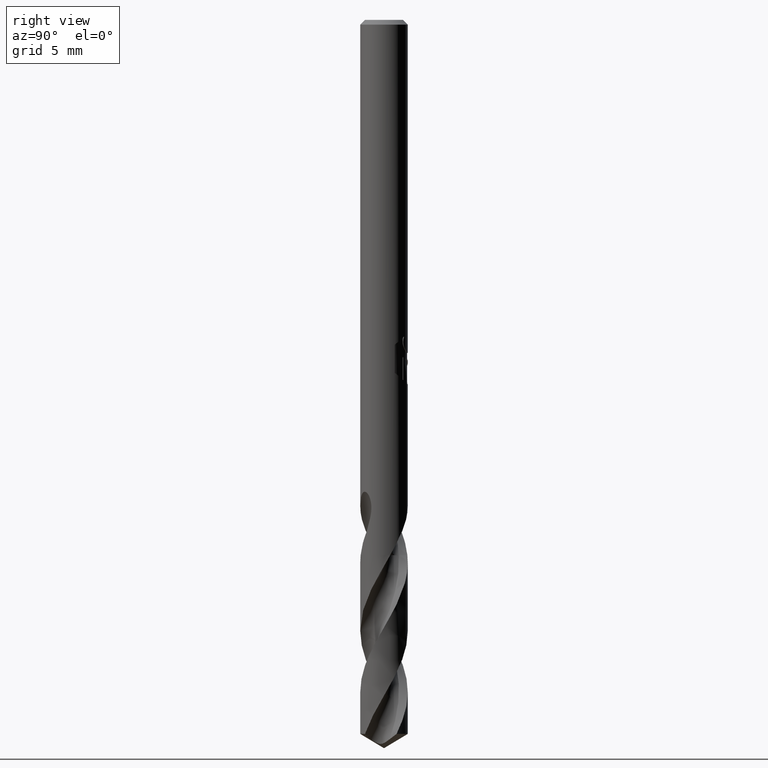
[diagram: clean part render]
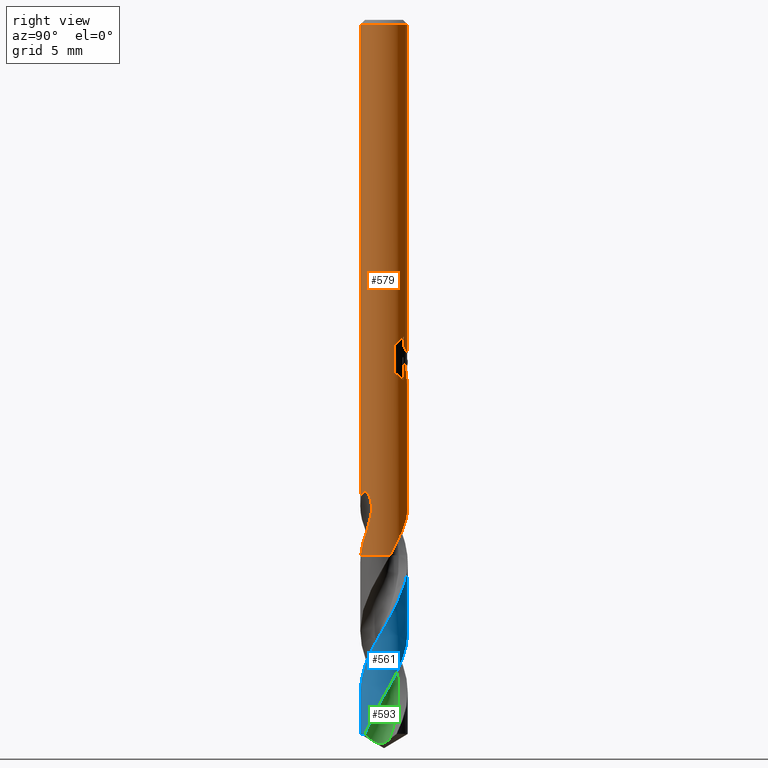
[diagram: same view with three faces highlighted in distinct colors, each labeled with its STEP entity id]
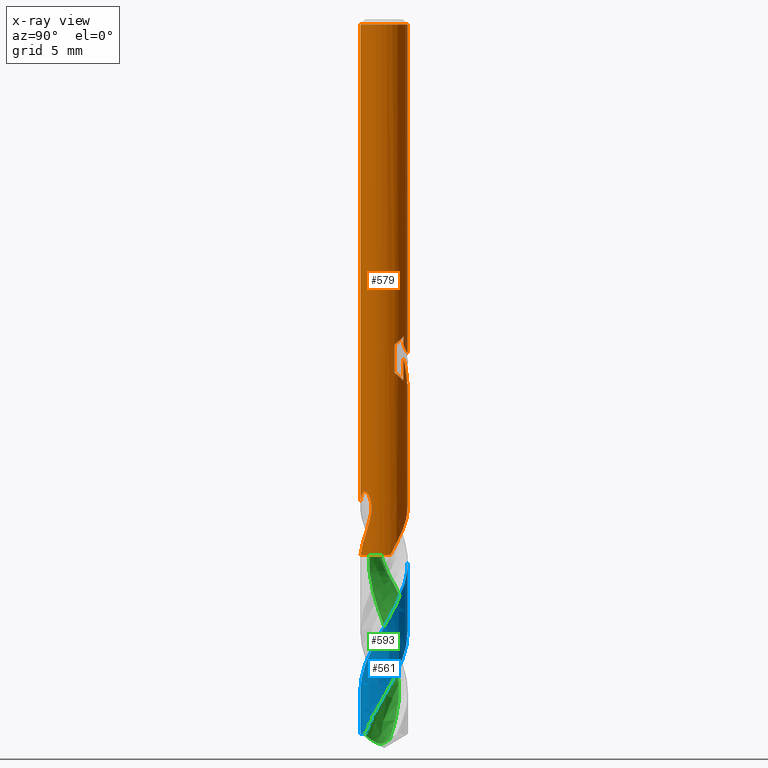
[diagram: x-ray of the same camera — body ghosted, the three highlighted faces saturated]
A machine part, right view with three faces highlighted in distinct colors.
The next image is the same camera in x-ray (body ghosted, the three faces saturated) — at least one of them is partly hidden behind the body in this view.
Their STEP definitions:

[orange] entity #579 — the highlighted cylindrical surface (edge-blend (fillet) strip) has radius 1.5 mm, axis along (-0, -0, 1).
#301=VERTEX_POINT('',#793);
#325=VERTEX_POINT('',#820);
#327=VERTEX_POINT('',#822);
#347=VERTEX_POINT('',#844);
#369=EDGE_CURVE('',#507,#301,#870,.T.);
#399=VERTEX_POINT('',#905);
#405=VERTEX_POINT('',#911);
#409=EDGE_CURVE('',#347,#523,#916,.T.);
#441=EDGE_CURVE('',#347,#405,#951,.T.);
#449=EDGE_CURVE('',#467,#301,#959,.T.);
#451=EDGE_CURVE('',#573,#325,#961,.T.);
#457=VERTEX_POINT('',#967);
#467=VERTEX_POINT('',#977);
#497=EDGE_CURVE('',#637,#551,#1011,.T.);
#499=EDGE_CURVE('',#399,#637,#1013,.T.);
#503=VERTEX_POINT('',#1017);
#507=VERTEX_POINT('',#1021);
#513=EDGE_CURVE('',#681,#609,#1028,.T.);
#523=VERTEX_POINT('',#1039);
#551=VERTEX_POINT('',#1068);
#555=EDGE_CURVE('',#457,#503,#1072,.T.);
#557=EDGE_CURVE('',#551,#507,#1074,.T.);
#563=EDGE_CURVE('',#681,#573,#1081,.T.);
#573=VERTEX_POINT('',#1091);
#579=ADVANCED_FACE('',(#1097),#1098,.T.);
#601=VERTEX_POINT('',#1124);
#609=VERTEX_POINT('',#1132);
#611=EDGE_CURVE('',#327,#405,#1134,.T.);
#613=EDGE_CURVE('',#601,#399,#1136,.T.);
#637=VERTEX_POINT('',#1162);
#651=EDGE_CURVE('',#523,#601,#1178,.T.);
#669=EDGE_CURVE('',#457,#327,#1198,.T.);
#671=EDGE_CURVE('',#325,#503,#1200,.T.);
#681=VERTEX_POINT('',#1210);
#713=EDGE_CURVE('',#467,#609,#1245,.T.);
#793=CARTESIAN_POINT('',(1.07028167063725E-015,1.5,-21.0232688117743));
#820=CARTESIAN_POINT('',(1.04261601392358,-1.07840245155049,-32.273));
#822=CARTESIAN_POINT('',(0.955826450193441,1.15602586351284,-32.273));
#844=CARTESIAN_POINT('',(-1.44945831354929E-017,1.5,-23.0310253601033));
#870=B_SPLINE_CURVE_WITH_KNOTS('',3,(#1932,#1933,#1934,#1935,#1936,#1937,#1938,#1939,#1940,#1941,#1942,#1943,#1944,#1945,#1946,#1947,#1948,#1949,#1950,#1951,#1952,#1953,#1954,#1955,#1956,#1957,#1958),.UNSPECIFIED.,.F.,.F.,(4,2,3,2,2,2,2,2,2,2,2,2,4),(-0.555570148161677,-0.277785074080839,0.0,0.277785074080839,0.555570148161677,0.838954672448038,1.1223391967344,1.3938603912747,1.66538158581499,1.94034344792182,2.21530531002864,2.49026717213547,2.76522903424229),.UNSPECIFIED.);
#905=CARTESIAN_POINT('',(0.873560781758956,1.21938163040645,-22.7587351791531));
#911=CARTESIAN_POINT('',(-4.4379247726798E-013,1.5,-30.6785266610978));
#916=B_SPLINE_CURVE_WITH_KNOTS('',3,(#2548,#2549,#2550,#2551,#2552,#2553,#2554,#2555,#2556,#2557,#2558,#2559,#2560,#2561,#2562,#2563),.UNSPECIFIED.,.F.,.F.,(4,2,2,2,2,2,2,4),(0.656882363151586,0.985323544727379,1.31376472630317,1.61579827194463,1.91783181758608,2.21986536322754,2.52189890886899,2.82957976825427),.UNSPECIFIED.);
#951=LINE('',#2779,#2780);
#959=LINE('',#2790,#2791);
#961=B_SPLINE_CURVE_WITH_KNOTS('',3,(#2794,#2795,#2796,#2797),.UNSPECIFIED.,.F.,.F.,(4,4),(0.0,0.862079850827043),.UNSPECIFIED.);
#967=CARTESIAN_POINT('',(1.44637069140941,0.397507010041165,-33.8));
#977=CARTESIAN_POINT('',(0.0,1.5,-0.300000000000001));
#1011=LINE('',#3362,#3363);
#1013=B_SPLINE_CURVE_WITH_KNOTS('',3,(#3366,#3367,#3368,#3369,#3370,#3371,#3372,#3373),.UNSPECIFIED.,.F.,.F.,(4,2,2,4),(3.44494145273238,3.75262234189648,4.09409052256848,4.43555870324049),.UNSPECIFIED.);
#1017=CARTESIAN_POINT('',(0.274332177781953,-1.47470059884487,-33.8));
#1021=CARTESIAN_POINT('',(0.799431726384364,1.26921586613551,-20.000000276873));
#1028=LINE('',#3399,#3400);
#1039=CARTESIAN_POINT('',(0.29010312703583,1.47167937258223,-22.9998328990228));
#1068=CARTESIAN_POINT('',(1.33721006514658,0.679609624468844,-20.5150484364821));
#1072=CIRCLE('',#3829,1.5);
#1074=B_SPLINE_CURVE_WITH_KNOTS('',3,(#3832,#3833,#3834,#3835,#3836,#3837,#3838,#3839,#3840,#3841),.UNSPECIFIED.,.F.,.F.,(4,2,2,2,4),(5.80143132409454,6.14289950153579,6.48436767897705,6.79204857051347,7.0997294620499),.UNSPECIFIED.);
#1081=B_SPLINE_CURVE_WITH_KNOTS('',3,(#3849,#3850,#3851,#3852,#3853,#3854,#3855,#3856,#3857,#3858,#3859,#3860,#3861,#3862,#3863,#3864,#3865,#3866,#3867,#3868,#3869,#3870,#3871,#3872,#3873,#3874,#3875,#3876),.UNSPECIFIED.,.F.,.F.,(4,2,2,2,2,2,2,2,2,2,2,2,2,4),(0.0,0.734919424519649,1.13620153114086,1.49966231498588,1.92191661966289,2.4291402290594,2.8687597418493,3.06797982700542,3.21358544477763,3.35137095256146,3.52616008675841,3.78188368372509,4.14542484132772,4.55882766017349),.UNSPECIFIED.);
#1091=CARTESIAN_POINT('',(1.22046324492086,-0.872049005387454,-31.451629657912));
#1097=FACE_OUTER_BOUND('',#3944,.T.);
#1098=CYLINDRICAL_SURFACE('',#3945,1.5);
#1124=CARTESIAN_POINT('',(0.873560781758957,1.21938163040644,-21.3198931596091));
#1132=CARTESIAN_POINT('',(1.83690953073357E-016,-1.5,-0.300000000000001));
#1134=B_SPLINE_CURVE_WITH_KNOTS('',3,(#4422,#4423,#4424,#4425,#4426,#4427,#4428,#4429,#4430,#4431,#4432,#4433,#4434,#4435,#4436,#4437,#4438,#4439,#4440,#4441,#4442,#4443,#4444,#4445,#4446,#4447,#4448,#4449),.UNSPECIFIED.,.F.,.F.,(4,2,2,2,2,2,2,2,2,2,2,2,2,4),(0.0,0.734919424519641,1.13620153114084,1.49966231498582,1.92191661966277,2.42914022905919,2.868759741849,3.06797982700512,3.21358544477729,3.35137095256106,3.52616008675795,3.78188368372415,4.14542484132553,4.55882766016978),.UNSPECIFIED.);
#1136=LINE('',#4452,#4453);
#1162=CARTESIAN_POINT('',(1.33721006514658,0.679609624468842,-22.2901657003257));
#1178=ELLIPSE('',#5253,4.57199186005466,1.5);
#1198=B_SPLINE_CURVE_WITH_KNOTS('',3,(#5415,#5416,#5417,#5418,#5419,#5420,#5421,#5422),.UNSPECIFIED.,.F.,.F.,(4,2,2,4),(0.0,0.898366519001214,1.48809988564345,2.57980706411343),.UNSPECIFIED.);
#1200=B_SPLINE_CURVE_WITH_KNOTS('',3,(#5425,#5426,#5427,#5428,#5429,#5430,#5431,#5432),.UNSPECIFIED.,.F.,.F.,(4,2,2,4),(0.0,0.363131137545105,0.689911434857545,1.59394428771477),.UNSPECIFIED.);
#1210=CARTESIAN_POINT('',(4.44902700292606E-013,-1.5,-30.6785266610978));
#1245=CIRCLE('',#5523,1.5);
#1932=CARTESIAN_POINT('',(0.668140181180239,1.34297754943723,-19.816635075886));
#1933=CARTESIAN_POINT('',(0.72954561541178,1.31242794124006,-19.8788438588981));
#1934=CARTESIAN_POINT('',(0.783560352001634,1.27981669553828,-19.9575082882911));
#1935=CARTESIAN_POINT('',(0.856513351014311,1.23218614058296,-20.132478185051));
#1936=CARTESIAN_POINT('',(0.875400981188567,1.21806121444453,-20.2290469878932));
#1937=CARTESIAN_POINT('',(0.875400981188567,1.21806121444453,-20.3216420125868));
#1938=CARTESIAN_POINT('',(0.875400981188567,1.21806121444453,-20.4142370372804));
#1939=CARTESIAN_POINT('',(0.856513351014311,1.23218614058296,-20.5108058401225));
#1940=CARTESIAN_POINT('',(0.783560352001634,1.27981669553828,-20.6857757368825));
#1941=CARTESIAN_POINT('',(0.72954561541178,1.31242794124006,-20.7644401662755));
#1942=CARTESIAN_POINT('',(0.60549696744429,1.37414296109493,-20.8901117053001));
#1943=CARTESIAN_POINT('',(0.52594358793364,1.40783000818906,-20.945820443328));
#1944=CARTESIAN_POINT('',(0.348504567526036,1.46189827571051,-21.0210790623878));
#1945=CARTESIAN_POINT('',(0.250472190188546,1.48195366272155,-21.0405166027747));
#1946=CARTESIAN_POINT('',(0.0665134459332673,1.50125530483568,-21.0405166027747));
#1947=CARTESIAN_POINT('',(-0.0296567030390787,1.50231596180862,-21.0225191030741));
#1948=CARTESIAN_POINT('',(-0.206115087377689,1.48840496513252,-20.9496420023373));
#1949=CARTESIAN_POINT('',(-0.286451100530325,1.47383453037813,-20.8948020659474));
#1950=CARTESIAN_POINT('',(-0.413930554322423,1.44326440842702,-20.7683224497832));
#1951=CARTESIAN_POINT('',(-0.469556401354002,1.42515667708804,-20.6877724765815));
#1952=CARTESIAN_POINT('',(-0.543783863835251,1.3985185002205,-20.5103125850334));
#1953=CARTESIAN_POINT('',(-0.562348199187247,1.39059861314143,-20.4132959666224));
#1954=CARTESIAN_POINT('',(-0.562348199187247,1.39059861314143,-20.2299880585512));
#1955=CARTESIAN_POINT('',(-0.543783863835251,1.3985185002205,-20.1329714401401));
#1956=CARTESIAN_POINT('',(-0.469556401354002,1.42515667708804,-19.9555115485921));
#1957=CARTESIAN_POINT('',(-0.413930554322424,1.44326440842702,-19.8749615753903));
#1958=CARTESIAN_POINT('',(-0.349789520911262,1.45864570443294,-19.8113236082914));
#2548=CARTESIAN_POINT('',(-1.37998432118956,0.587914341780333,-22.3112692902851));
#2549=CARTESIAN_POINT('',(-1.3420187927796,0.677031105684867,-22.367742000234));
#2550=CARTESIAN_POINT('',(-1.29552710671502,0.762160552391982,-22.4289638354046));
#2551=CARTESIAN_POINT('',(-1.18739688452769,0.921611538394464,-22.5496702342709));
#2552=CARTESIAN_POINT('',(-1.12571460502269,0.995864518486346,-22.6092061584419));
#2553=CARTESIAN_POINT('',(-0.99683873257529,1.12423580420845,-22.7144597063823));
#2554=CARTESIAN_POINT('',(-0.926200605330785,1.18371601339253,-22.7644681671771));
#2555=CARTESIAN_POINT('',(-0.769406154596547,1.29114109676327,-22.8557531235434));
#2556=CARTESIAN_POINT('',(-0.683234987830561,1.33908204140926,-22.8970087462345));
#2557=CARTESIAN_POINT('',(-0.499897730684779,1.4177634331103,-22.9645767271564));
#2558=CARTESIAN_POINT('',(-0.402498520356948,1.44857835781097,-22.9909473368275));
#2559=CARTESIAN_POINT('',(-0.20288430631457,1.48970543263052,-23.0250573425345));
#2560=CARTESIAN_POINT('',(-0.100662581590227,1.5,-23.0327786015796));
#2561=CARTESIAN_POINT('',(0.102544734048809,1.5,-23.0292393371535));
#2562=CARTESIAN_POINT('',(0.206197625002642,1.48932559621363,-23.0175826358192));
#2563=CARTESIAN_POINT('',(0.307013263411802,1.46824482157753,-22.9963679704669));
#2779=CARTESIAN_POINT('',(-1.83690953073357E-016,1.5,-29.4));
#2780=VECTOR('',#6526,1.0);
#2790=CARTESIAN_POINT('',(-1.83690953073357E-016,1.5,-29.4));
#2791=VECTOR('',#6530,1.0);
#2794=CARTESIAN_POINT('',(1.22046324497348,-0.872049005313815,-31.4516296579409));
#2795=CARTESIAN_POINT('',(1.17210448132609,-0.939728795376484,-31.7266871374211));
#2796=CARTESIAN_POINT('',(1.11381924545133,-1.0095620763017,-32.0033814725976));
#2797=CARTESIAN_POINT('',(1.04261601392358,-1.07840245155049,-32.273));
#3362=CARTESIAN_POINT('',(1.33721006514658,0.679609624468842,-21.4026070684039));
#3363=VECTOR('',#6576,1.0);
#3366=CARTESIAN_POINT('',(0.85377235345141,1.23331778892629,-22.7716896685764));
#3367=CARTESIAN_POINT('',(0.931827525962819,1.17928358209268,-22.7213967195539));
#3368=CARTESIAN_POINT('',(1.00188140708589,1.11969494995205,-22.6666907649153));
#3369=CARTESIAN_POINT('',(1.13065972950939,0.990366314251407,-22.5504502365922));
#3370=CARTESIAN_POINT('',(1.19231359439054,0.915242251333689,-22.4842345901414));
#3371=CARTESIAN_POINT('',(1.29959340280439,0.755206645619147,-22.3494445634359));
#3372=CARTESIAN_POINT('',(1.34525639772529,0.670378049633869,-22.2808012142433));
#3373=CARTESIAN_POINT('',(1.38233607670672,0.582363263809685,-22.2165347234377));
#3399=CARTESIAN_POINT('',(1.83690953073357E-016,-1.5,-29.4));
#3400=VECTOR('',#6605,1.0);
#3829=AXIS2_PLACEMENT_3D('',#6640,#6641,#6642);
#3832=CARTESIAN_POINT('',(1.38233607683132,0.582363263513924,-20.588679412779));
#3833=CARTESIAN_POINT('',(1.34525639795916,0.670378049131382,-20.5244129230316));
#3834=CARTESIAN_POINT('',(1.29959340329505,0.755206644680287,-20.455769574626));
#3835=CARTESIAN_POINT('',(1.19231359589767,0.915242249292316,-20.3209795489815));
#3836=CARTESIAN_POINT('',(1.13065973177348,0.990366311544942,-20.2547639028079));
#3837=CARTESIAN_POINT('',(1.0018814103964,1.11969494701727,-20.1385233736042));
#3838=CARTESIAN_POINT('',(0.931827529215927,1.17928357954499,-20.0838174178235));
#3839=CARTESIAN_POINT('',(0.77571718400412,1.28735199393445,-19.9832315170083));
#3840=CARTESIAN_POINT('',(0.689646271470066,1.33582605359774,-19.9373678495874));
#3841=CARTESIAN_POINT('',(0.597730583977961,1.37576093452946,-19.8990923208842));
#3849=CARTESIAN_POINT('',(-0.955826450193442,-1.15602586351284,-32.273));
#3850=CARTESIAN_POINT('',(-0.856880714080365,-1.23783627510982,-32.0643648209938));
#3851=CARTESIAN_POINT('',(-0.743115395704618,-1.31056007068985,-31.8698497401907));
#3852=CARTESIAN_POINT('',(-0.544742531155021,-1.39969826187234,-31.5448988086608));
#3853=CARTESIAN_POINT('',(-0.473358796381456,-1.42533989743551,-31.4305703465191));
#3854=CARTESIAN_POINT('',(-0.33516888827982,-1.46366222849664,-31.2092599492561));
#3855=CARTESIAN_POINT('',(-0.268979746686005,-1.47720142054802,-31.103309612104));
#3856=CARTESIAN_POINT('',(-0.125708112629072,-1.49674184821654,-30.8749583743827));
#3857=CARTESIAN_POINT('',(-0.0474288869669631,-1.50132942011774,-30.75077006207));
#3858=CARTESIAN_POINT('',(0.12640913429535,-1.49767287657042,-30.4850903627386));
#3859=CARTESIAN_POINT('',(0.229477470973733,-1.48636306121171,-30.3339157281609));
#3860=CARTESIAN_POINT('',(0.428231458063886,-1.44068852394289,-30.0846391386798));
#3861=CARTESIAN_POINT('',(0.538194148392213,-1.40589025977158,-29.9630018423218));
#3862=CARTESIAN_POINT('',(0.704621514688883,-1.32545512693772,-29.849100888941));
#3863=CARTESIAN_POINT('',(0.759710000846592,-1.29508905514035,-29.8209514377899));
#3864=CARTESIAN_POINT('',(0.856237705091836,-1.23256455462362,-29.799327587984));
#3865=CARTESIAN_POINT('',(0.895829141852265,-1.20409042289795,-29.7989238040765));
#3866=CARTESIAN_POINT('',(0.969570334630121,-1.14543964779932,-29.8178491174815));
#3867=CARTESIAN_POINT('',(1.00182105452755,-1.11711249050342,-29.8355932949545));
#3868=CARTESIAN_POINT('',(1.06745091261156,-1.0550357310721,-29.8911127993405));
#3869=CARTESIAN_POINT('',(1.09781425610002,-1.02286599079868,-29.9321039737442));
#3870=CARTESIAN_POINT('',(1.16000820300644,-0.952620997760338,-30.0443505497179));
#3871=CARTESIAN_POINT('',(1.1897356693544,-0.914367567158807,-30.1276043439943));
#3872=CARTESIAN_POINT('',(1.24563707432167,-0.837555141191258,-30.3605391888482));
#3873=CARTESIAN_POINT('',(1.2658467294698,-0.804836722556952,-30.5264322515252));
#3874=CARTESIAN_POINT('',(1.27876869102085,-0.784167622639195,-30.923052096235));
#3875=CARTESIAN_POINT('',(1.26961263652255,-0.803262703712318,-31.1720834470048));
#3876=CARTESIAN_POINT('',(1.22046324492086,-0.872049005387455,-31.451629657912));
#3944=EDGE_LOOP('',(#6654,#6655,#6656,#6657,#6658,#6659,#6660,#6661,#6662,#6663,#6664,#6665,#6666,#6667,#6668,#6669,#6670));
#3945=AXIS2_PLACEMENT_3D('',#6671,#6672,#6673);
#4422=CARTESIAN_POINT('',(0.95582645019344,1.15602586351284,-32.273));
#4423=CARTESIAN_POINT('',(0.856880714080364,1.23783627510982,-32.0643648209938));
#4424=CARTESIAN_POINT('',(0.743115395704616,1.31056007068985,-31.8698497401907));
#4425=CARTESIAN_POINT('',(0.544742531155022,1.39969826187234,-31.5448988086608));
#4426=CARTESIAN_POINT('',(0.473358796381459,1.42533989743551,-31.4305703465191));
#4427=CARTESIAN_POINT('',(0.335168888279825,1.46366222849664,-31.2092599492562));
#4428=CARTESIAN_POINT('',(0.268979746686013,1.47720142054802,-31.103309612104));
#4429=CARTESIAN_POINT('',(0.125708112629069,1.49674184821654,-30.8749583743827));
#4430=CARTESIAN_POINT('',(0.0474288869669627,1.50132942011774,-30.75077006207));
#4431=CARTESIAN_POINT('',(-0.126409134295348,1.49767287657042,-30.4850903627386));
#4432=CARTESIAN_POINT('',(-0.22947747097373,1.48636306121171,-30.3339157281609));
#4433=CARTESIAN_POINT('',(-0.428231458063881,1.44068852394289,-30.0846391386798));
#4434=CARTESIAN_POINT('',(-0.538194148392212,1.40589025977158,-29.9630018423218));
#4435=CARTESIAN_POINT('',(-0.704621514688896,1.32545512693771,-29.849100888941));
#4436=CARTESIAN_POINT('',(-0.759710000846596,1.29508905514035,-29.8209514377899));
#4437=CARTESIAN_POINT('',(-0.85623770509182,1.23256455462363,-29.799327587984));
#4438=CARTESIAN_POINT('',(-0.895829141852259,1.20409042289796,-29.7989238040765));
#4439=CARTESIAN_POINT('',(-0.969570334630121,1.14543964779932,-29.8178491174815));
#4440=CARTESIAN_POINT('',(-1.00182105452755,1.11711249050342,-29.8355932949545));
#4441=CARTESIAN_POINT('',(-1.06745091261156,1.0550357310721,-29.8911127993405));
#4442=CARTESIAN_POINT('',(-1.09781425610002,1.02286599079868,-29.9321039737442));
#4443=CARTESIAN_POINT('',(-1.16000820300638,0.952620997760409,-30.0443505497178));
#4444=CARTESIAN_POINT('',(-1.18973566935435,0.914367567158863,-30.1276043439941));
#4445=CARTESIAN_POINT('',(-1.24563707432168,0.837555141191247,-30.3605391888482));
#4446=CARTESIAN_POINT('',(-1.26584672946981,0.804836722556951,-30.5264322515253));
#4447=CARTESIAN_POINT('',(-1.27876869102085,0.784167622639202,-30.9230520962349));
#4448=CARTESIAN_POINT('',(-1.26961263652257,0.803262703712296,-31.1720834470047));
#4449=CARTESIAN_POINT('',(-1.22046324492086,0.872049005387457,-31.451629657912));
#4452=CARTESIAN_POINT('',(0.873560781758957,1.21938163040644,-22.0393141693811));
#4453=VECTOR('',#6710,1.0);
#5253=AXIS2_PLACEMENT_3D('',#6738,#6739,#6740);
#5415=CARTESIAN_POINT('',(1.44637069140942,0.397507010041158,-33.8));
#5416=CARTESIAN_POINT('',(1.40674820633815,0.541677552145448,-33.5405418844212));
#5417=CARTESIAN_POINT('',(1.34660783628587,0.676830825579305,-33.2953837206006));
#5418=CARTESIAN_POINT('',(1.21710188260143,0.881990667582461,-32.8619443828852));
#5419=CARTESIAN_POINT('',(1.17348785641552,0.93523493850717,-32.7289072521104));
#5420=CARTESIAN_POINT('',(1.09684883918653,1.02609894595033,-32.516738341527));
#5421=CARTESIAN_POINT('',(1.03497201032485,1.09058665304475,-32.3921053474163));
#5422=CARTESIAN_POINT('',(0.955826450193442,1.15602586351284,-32.273));
#5425=CARTESIAN_POINT('',(1.04261601392358,-1.07840245155049,-32.273));
#5426=CARTESIAN_POINT('',(1.00139489406672,-1.11825566183653,-32.3796026324584));
#5427=CARTESIAN_POINT('',(0.956589991650253,-1.1571678712405,-32.4869305648621));
#5428=CARTESIAN_POINT('',(0.85958348272533,-1.23062504590984,-32.6954116418018));
#5429=CARTESIAN_POINT('',(0.810864182166012,-1.26348538763226,-32.7938125485142));
#5430=CARTESIAN_POINT('',(0.607898890496309,-1.38212774359936,-33.1989850733925));
#5431=CARTESIAN_POINT('',(0.444564646352219,-1.44303298857288,-33.4999363270875));
#5432=CARTESIAN_POINT('',(0.274332177781959,-1.47470059884486,-33.8));
#5523=AXIS2_PLACEMENT_3D('',#6797,#6798,#6799);
#6526=DIRECTION('',(0.0,0.0,-1.0));
#6530=DIRECTION('',(0.0,0.0,-1.0));
#6576=DIRECTION('',(-0.0,-0.0,1.0));
#6605=DIRECTION('',(-0.0,-0.0,1.0));
#6640=CARTESIAN_POINT('',(0.0,0.0,-33.8));
#6641=DIRECTION('',(0.0,0.0,-1.0));
#6642=DIRECTION('',(0.0,1.0,0.0));
#6654=ORIENTED_EDGE('',*,*,#449,.F.);
#6655=ORIENTED_EDGE('',*,*,#713,.T.);
#6656=ORIENTED_EDGE('',*,*,#513,.F.);
#6657=ORIENTED_EDGE('',*,*,#563,.T.);
#6658=ORIENTED_EDGE('',*,*,#451,.T.);
#6659=ORIENTED_EDGE('',*,*,#671,.T.);
#6660=ORIENTED_EDGE('',*,*,#555,.F.);
#6661=ORIENTED_EDGE('',*,*,#669,.T.);
#6662=ORIENTED_EDGE('',*,*,#611,.T.);
#6663=ORIENTED_EDGE('',*,*,#441,.F.);
#6664=ORIENTED_EDGE('',*,*,#409,.T.);
#6665=ORIENTED_EDGE('',*,*,#651,.T.);
#6666=ORIENTED_EDGE('',*,*,#613,.T.);
#6667=ORIENTED_EDGE('',*,*,#499,.T.);
#6668=ORIENTED_EDGE('',*,*,#497,.T.);
#6669=ORIENTED_EDGE('',*,*,#557,.T.);
#6670=ORIENTED_EDGE('',*,*,#369,.T.);
#6671=CARTESIAN_POINT('',(0.0,0.0,-29.4));
#6672=DIRECTION('',(-0.0,-0.0,1.0));
#6673=DIRECTION('',(0.0,1.0,0.0));
#6710=DIRECTION('',(0.0,0.0,-1.0));
#6738=CARTESIAN_POINT('',(0.0,0.0,-23.8351219173269));
#6739=DIRECTION('',(0.944648353914092,0.0,-0.328084573619969));
#6740=DIRECTION('',(0.328084573619969,-0.0,0.944648353914092));
#6797=CARTESIAN_POINT('',(0.0,0.0,-0.300000000000001));
#6798=DIRECTION('',(0.0,0.0,-1.0));
#6799=DIRECTION('',(0.0,1.0,0.0));

[blue] entity #561 — the highlighted conical surface has half-angle 0.001 deg.
#303=EDGE_CURVE('',#315,#627,#795,.T.);
#315=VERTEX_POINT('',#810);
#419=EDGE_CURVE('',#445,#627,#928,.T.);
#439=VERTEX_POINT('',#949);
#443=EDGE_CURVE('',#583,#315,#953,.T.);
#445=VERTEX_POINT('',#955);
#549=EDGE_CURVE('',#445,#439,#1066,.T.);
#561=ADVANCED_FACE('',(#1078),#1079,.T.);
#583=VERTEX_POINT('',#1102);
#627=VERTEX_POINT('',#1151);
#657=EDGE_CURVE('',#583,#439,#1184,.T.);
#795=LINE('',#1478,#1479);
#810=CARTESIAN_POINT('',(1.83690953073306E-016,-1.5,-45.0987090714587));
#928=B_SPLINE_CURVE_WITH_KNOTS('',3,(#2580,#2581,#2582,#2583,#2584,#2585,#2586,#2587,#2588,#2589,#2590,#2591,#2592,#2593,#2594,#2595,#2596,#2597,#2598,#2599,#2600,#2601,#2602,#2603,#2604,#2605,#2606,#2607,#2608,#2609,#2610,#2611,#2612,#2613,#2614,#2615,#2616,#2617,#2618,#2619,#2620,#2621,#2622,#2623,#2624,#2625,#2626,#2627,#2628,#2629,#2630,#2631,#2632,#2633,#2634,#2635,#2636,#2637),.UNSPECIFIED.,.F.,.F.,(4,2,2,2,2,2,2,2,2,2,2,2,2,2,2,2,2,2,2,2,2,2,2,2,2,2,2,2,4),(0.0,0.412712007311904,1.02315288898945,1.31457605175856,1.89478417109436,2.18734425393405,2.22542742319312,2.72880782782205,3.02205725740408,3.31184652918757,3.8914006353009,4.03734011873589,4.32642330185619,4.90646327712457,5.48878435257972,6.07265105572692,6.21682465875408,6.82651098949632,7.41092778246839,7.99347326458904,8.28266896801387,8.86236652455153,9.38182822016152,9.83681011690985,10.0364540795945,10.2224758620449,10.9222424624711,11.4489190571831,13.0437849569643),.UNSPECIFIED.);
#949=CARTESIAN_POINT('',(-3.13860003223368E-016,1.49994239917648,-38.5905595988041));
#953=CIRCLE('',#2783,1.5);
#955=CARTESIAN_POINT('',(-2.37395634863545E-014,1.49990424063446,-34.2791369502725));
#1066=LINE('',#3801,#3802);
#1078=FACE_OUTER_BOUND('',#3845,.T.);
#1079=CONICAL_SURFACE('',#3846,1.49995,8.85056862380721E-006);
#1102=CARTESIAN_POINT('',(0.898964889177854,-1.20077563600593,-45.0987090714587));
#1151=CARTESIAN_POINT('',(-3.0167538709066E-015,-1.4999766485866,-42.4603008076202));
#1184=B_SPLINE_CURVE_WITH_KNOTS('',3,(#5277,#5278,#5279,#5280,#5281,#5282,#5283,#5284,#5285,#5286,#5287,#5288,#5289,#5290,#5291,#5292,#5293,#5294,#5295,#5296,#5297,#5298,#5299,#5300,#5301,#5302,#5303,#5304,#5305,#5306,#5307,#5308,#5309,#5310,#5311,#5312,#5313,#5314,#5315,#5316,#5317,#5318,#5319,#5320,#5321,#5322,#5323,#5324,#5325,#5326,#5327,#5328,#5329,#5330,#5331,#5332,#5333,#5334,#5335,#5336,#5337,#5338,#5339,#5340,#5341,#5342),.UNSPECIFIED.,.F.,.F.,(4,2,2,2,2,2,2,2,2,2,2,2,2,2,2,2,2,2,2,2,2,2,2,2,2,2,2,2,2,2,2,2,4),(0.0,0.587548930929874,1.17219633491958,1.75708313699691,2.0486830362662,2.54372425028701,2.79175573110136,3.03846331551728,3.53381270181263,3.78198925889546,4.02889593419828,4.52456850841751,4.77291035535085,5.01998875886444,5.51600228806989,5.76453197975784,6.0118222586032,6.599840608108,6.89334279986365,6.92982959179808,7.51519973160026,8.09815558847677,8.68291184073528,9.22598929252954,9.70420817375632,10.1206827768515,10.8534329250034,10.8875830650539,11.4266172634033,11.831193684894,11.8690351664345,12.4565412466727,13.0421091506934),.UNSPECIFIED.);
#1478=CARTESIAN_POINT('',(1.83737932684824E-016,-1.49995,-39.4493545357293));
#1479=VECTOR('',#6338,1.0);
#2580=CARTESIAN_POINT('',(-0.271758074504302,1.47507548220704,-33.8044921620275));
#2581=CARTESIAN_POINT('',(-0.204142080272698,1.48753367464163,-33.9236498716524));
#2582=CARTESIAN_POINT('',(-0.135839845590517,1.49531161099616,-34.0427677182803));
#2583=CARTESIAN_POINT('',(0.0339979617841253,1.50294608390038,-34.3383880958627));
#2584=CARTESIAN_POINT('',(0.135616603516598,1.49721411528421,-34.5144406957363));
#2585=CARTESIAN_POINT('',(0.283854733757048,1.4736027562454,-34.7748926299985));
#2586=CARTESIAN_POINT('',(0.331350537186167,1.46365537351991,-34.8589092445469));
#2587=CARTESIAN_POINT('',(0.471718584753518,1.42707387050272,-35.1106495337354));
#2588=CARTESIAN_POINT('',(0.562589149320856,1.39375594018239,-35.2780034450408));
#2589=CARTESIAN_POINT('',(0.693502764973594,1.33085319260625,-35.5300941023429));
#2590=CARTESIAN_POINT('',(0.736332783559687,1.30764384501702,-35.6145251370681));
#2591=CARTESIAN_POINT('',(0.7833758830217,1.27910637159065,-35.7100285670296));
#2592=CARTESIAN_POINT('',(0.78877263571982,1.27578559829462,-35.7210278996095));
#2593=CARTESIAN_POINT('',(0.86520040882298,1.22808721349864,-35.8774400509443));
#2594=CARTESIAN_POINT('',(0.932409105574771,1.17787342521949,-36.0227859134886));
#2595=CARTESIAN_POINT('',(1.03157920489245,1.08994940426996,-36.2529387389864));
#2596=CARTESIAN_POINT('',(1.06649464566189,1.05581228736232,-36.3375914782957));
#2597=CARTESIAN_POINT('',(1.13249906139664,0.984654689677003,-36.5060020452942));
#2598=CARTESIAN_POINT('',(1.16356966643037,0.947736509756752,-36.5896049823844));
#2599=CARTESIAN_POINT('',(1.25126803358554,0.832710881183599,-36.8407785364096));
#2600=CARTESIAN_POINT('',(1.30221661464656,0.750548783928081,-37.0079896289141));
#2601=CARTESIAN_POINT('',(1.35568206277954,0.64226708721561,-37.2175870558842));
#2602=CARTESIAN_POINT('',(1.36590730572347,0.620225302488151,-37.2597396323047));
#2603=CARTESIAN_POINT('',(1.39478012139089,0.553804933824877,-37.3854115920903));
#2604=CARTESIAN_POINT('',(1.41182436631671,0.50878559004795,-37.4688384453802));
#2605=CARTESIAN_POINT('',(1.45646685043896,0.371243949261992,-37.7199886164181));
#2606=CARTESIAN_POINT('',(1.47734146560955,0.276758865094872,-37.8873372925401));
#2607=CARTESIAN_POINT('',(1.50068249036454,0.0846625161415502,-38.2231782543113));
#2608=CARTESIAN_POINT('',(1.50301447897275,-0.0124497145726609,-38.3909610922225));
#2609=CARTESIAN_POINT('',(1.48890900960549,-0.205952224079409,-38.7279902478139));
#2610=CARTESIAN_POINT('',(1.47244982327797,-0.301957274721587,-38.896289201107));
#2611=CARTESIAN_POINT('',(1.44046904526926,-0.418886761487107,-39.1066311412276));
#2612=CARTESIAN_POINT('',(1.43358235670516,-0.441881853714903,-39.1482653732989));
#2613=CARTESIAN_POINT('',(1.39470750740715,-0.561193623390832,-39.3661081556097));
#2614=CARTESIAN_POINT('',(1.35354904127688,-0.654263836592466,-39.542085840682));
#2615=CARTESIAN_POINT('',(1.25514376108051,-0.827008503546259,-39.8871647764445));
#2616=CARTESIAN_POINT('',(1.1988845177197,-0.906641430112762,-40.0554942895409));
#2617=CARTESIAN_POINT('',(1.07198702596664,-1.05361998737612,-40.3928029112377));
#2618=CARTESIAN_POINT('',(1.0016497222352,-1.12070926169899,-40.5608028015552));
#2619=CARTESIAN_POINT('',(0.88738870701393,-1.21026733459634,-40.8127098543607));
#2620=CARTESIAN_POINT('',(0.848088104086038,-1.23812429132631,-40.8961883815391));
#2621=CARTESIAN_POINT('',(0.726219529498508,-1.31598225134361,-41.1473438300812));
#2622=CARTESIAN_POINT('',(0.64006468898588,-1.3599764970799,-41.3146505618351));
#2623=CARTESIAN_POINT('',(0.46978469682043,-1.42712772483304,-41.6323267951365));
#2624=CARTESIAN_POINT('',(0.386743027750424,-1.45183178625518,-41.7820690533152));
#2625=CARTESIAN_POINT('',(0.227894967349676,-1.48449210627862,-42.063770629401));
#2626=CARTESIAN_POINT('',(0.15265356369898,-1.49410869899641,-42.195145028569));
#2627=CARTESIAN_POINT('',(0.0437805957861032,-1.49970549479219,-42.3843527698668));
#2628=CARTESIAN_POINT('',(0.010526338644834,-1.50030812828336,-42.4420314897751));
#2629=CARTESIAN_POINT('',(-0.0537051270254748,-1.49933593465923,-42.5534934867429));
#2630=CARTESIAN_POINT('',(-0.0846549634573458,-1.4979073888902,-42.6072268093549));
#2631=CARTESIAN_POINT('',(-0.231689859845889,-1.48655080163457,-42.8632952792798));
#2632=CARTESIAN_POINT('',(-0.346449641884538,-1.46407245803975,-43.0651130408675));
#2633=CARTESIAN_POINT('',(-0.541029710758115,-1.40176331948181,-43.4196226097264));
#2634=CARTESIAN_POINT('',(-0.622041853413609,-1.3677380217684,-43.571563349163));
#2635=CARTESIAN_POINT('',(-0.93438972723776,-1.20305926006645,-44.1850127340088));
#2636=CARTESIAN_POINT('',(-1.13228840206603,-1.01906777730749,-44.6377787902618));
#2637=CARTESIAN_POINT('',(-1.27285982394133,-0.793616953319442,-45.0987090714587));
#2783=AXIS2_PLACEMENT_3D('',#6527,#6528,#6529);
#3801=CARTESIAN_POINT('',(-1.83631727398351E-016,1.49995,-39.4493545357293));
#3802=VECTOR('',#6639,1.0);
#3845=EDGE_LOOP('',(#6644,#6645,#6646,#6647,#6648));
#3846=AXIS2_PLACEMENT_3D('',#6649,#6650,#6651);
#5277=CARTESIAN_POINT('',(0.898964889177859,-1.20077563600593,-45.0987090714587));
#5278=CARTESIAN_POINT('',(0.976800514928227,-1.14250184231345,-44.9287006503498));
#5279=CARTESIAN_POINT('',(1.04899950509638,-1.07664198465589,-44.7600092892785));
#5280=CARTESIAN_POINT('',(1.17960625672653,-0.931656462114362,-44.4216461936674));
#5281=CARTESIAN_POINT('',(1.23753883149296,-0.853196197598527,-44.2525407346003));
#5282=CARTESIAN_POINT('',(1.33741667368532,-0.686120646968443,-43.9148704595427));
#5283=CARTESIAN_POINT('',(1.37908841825867,-0.59794194226052,-43.7471042264553));
#5284=CARTESIAN_POINT('',(1.42828215809011,-0.460779429246651,-43.4939923570147));
#5285=CARTESIAN_POINT('',(1.44240265631987,-0.414452255637177,-43.4095459773122));
#5286=CARTESIAN_POINT('',(1.47438282297503,-0.287908378374447,-43.1825042794213));
#5287=CARTESIAN_POINT('',(1.48795927699863,-0.206654465029531,-43.0403663331886));
#5288=CARTESIAN_POINT('',(1.49822499090824,-0.0834531398506879,-42.8261355034873));
#5289=CARTESIAN_POINT('',(1.49994928093325,-0.0422515801005801,-42.7546958457341));
#5290=CARTESIAN_POINT('',(1.50000703161603,0.0398761499507943,-42.6119544503452));
#5291=CARTESIAN_POINT('',(1.49836058257865,0.08075708911031,-42.5406123359803));
#5292=CARTESIAN_POINT('',(1.48838702719305,0.203419055410266,-42.3265747470231));
#5293=CARTESIAN_POINT('',(1.47500668724805,0.284713847553681,-42.1844254457672));
#5294=CARTESIAN_POINT('',(1.44495283322564,0.404637051608377,-41.9701911215583));
#5295=CARTESIAN_POINT('',(1.43328487119617,0.444190133815133,-41.8987510739125));
#5296=CARTESIAN_POINT('',(1.40682515144114,0.521950471328153,-41.755996111224));
#5297=CARTESIAN_POINT('',(1.39206650584005,0.560120264892557,-41.6846391224732));
#5298=CARTESIAN_POINT('',(1.34302809933944,0.672999100770368,-41.4705891496527));
#5299=CARTESIAN_POINT('',(1.30412116595996,0.745622001083481,-41.3284420351799));
#5300=CARTESIAN_POINT('',(1.23696182317176,0.849424895511733,-41.1142081340161));
#5301=CARTESIAN_POINT('',(1.21314940475355,0.883094725576559,-41.0427678718722));
#5302=CARTESIAN_POINT('',(1.16300153246595,0.948153052088664,-40.9000098709045));
#5303=CARTESIAN_POINT('',(1.13671050980034,0.979515149479826,-40.8286491661272));
#5304=CARTESIAN_POINT('',(1.0538692709365,1.07050794710725,-40.6146068255529));
#5305=CARTESIAN_POINT('',(0.993608762210079,1.12667740863305,-40.4724654755902));
#5306=CARTESIAN_POINT('',(0.896542569714968,1.20323973325377,-40.2582390183787));
#5307=CARTESIAN_POINT('',(0.863136115273726,1.2274205315033,-40.1867983724618));
#5308=CARTESIAN_POINT('',(0.794666998877106,1.27281138272229,-40.0440332347045));
#5309=CARTESIAN_POINT('',(0.759655874384142,1.29400959851707,-39.9726648848729));
#5310=CARTESIAN_POINT('',(0.638608334911408,1.36069905416159,-39.7322557756339));
#5311=CARTESIAN_POINT('',(0.548947945722856,1.39929140784652,-39.5642151995014));
#5312=CARTESIAN_POINT('',(0.409694122302799,1.44373324020712,-39.3107688775952));
#5313=CARTESIAN_POINT('',(0.362729284271505,1.45623535723792,-39.2264853322754));
#5314=CARTESIAN_POINT('',(0.309445509045991,1.46769252745782,-39.1314836332568));
#5315=CARTESIAN_POINT('',(0.303531469288311,1.46892705409157,-39.1209547523487));
#5316=CARTESIAN_POINT('',(0.202251654624819,1.48942685372553,-38.9409490590548));
#5317=CARTESIAN_POINT('',(0.105104356055025,1.49943866357566,-38.7726991438697));
#5318=CARTESIAN_POINT('',(-0.0897462596603232,1.50040708374384,-38.4350355028394));
#5319=CARTESIAN_POINT('',(-0.186683141117185,1.49143644007914,-38.2660228215366));
#5320=CARTESIAN_POINT('',(-0.377575208972161,1.45489501062999,-37.928489474273));
#5321=CARTESIAN_POINT('',(-0.471156160600946,1.42733711761113,-37.7606448243369));
#5322=CARTESIAN_POINT('',(-0.645242222281145,1.35706697283953,-37.4347189432173));
#5323=CARTESIAN_POINT('',(-0.725864693951521,1.31571474028717,-37.2772064921028));
#5324=CARTESIAN_POINT('',(-0.86967883547446,1.22466148084884,-36.9820563642675));
#5325=CARTESIAN_POINT('',(-0.933469742668102,1.17675404090218,-36.8444707746863));
#5326=CARTESIAN_POINT('',(-1.04506150025109,1.07815823146079,-36.585810969036));
#5327=CARTESIAN_POINT('',(-1.09376324766339,1.02872147955925,-36.4649565374674));
#5328=CARTESIAN_POINT('',(-1.21836055992428,0.883326072654812,-36.1326466198153));
#5329=CARTESIAN_POINT('',(-1.28605469466236,0.781422104090173,-35.9230233849758));
#5330=CARTESIAN_POINT('',(-1.343157316214,0.667615949101322,-35.7010582170962));
#5331=CARTESIAN_POINT('',(-1.34567502194499,0.662526536690073,-35.691159477777));
#5332=CARTESIAN_POINT('',(-1.38758356836798,0.576579417951742,-35.5245428962824));
#5333=CARTESIAN_POINT('',(-1.41972165117534,0.49222265690061,-35.3687409023126));
#5334=CARTESIAN_POINT('',(-1.46242556685828,0.340055350258774,-35.0948791396023));
#5335=CARTESIAN_POINT('',(-1.47626027648092,0.273763073117963,-34.9777842493555));
#5336=CARTESIAN_POINT('',(-1.48644384772913,0.200630112869291,-34.8492300547265));
#5337=CARTESIAN_POINT('',(-1.48727466908236,0.194375042170859,-34.8382392618633));
#5338=CARTESIAN_POINT('',(-1.500383865995,0.0906539529643482,-34.6562674072785));
#5339=CARTESIAN_POINT('',(-1.50311310024028,-0.00786235238217109,-34.4867546815098));
#5340=CARTESIAN_POINT('',(-1.48920904548137,-0.20394687895385,-34.1458030793931));
#5341=CARTESIAN_POINT('',(-1.47273929665311,-0.300472528257461,-33.9744822554294));
#5342=CARTESIAN_POINT('',(-1.44703474905601,-0.394703148990546,-33.8049265146903));
#6338=DIRECTION('',(-1.08384625715138E-021,8.85056862369166E-006,0.999999999960834));
#6527=CARTESIAN_POINT('',(0.0,0.0,-45.0987090714587));
#6528=DIRECTION('',(0.0,0.0,-1.0));
#6529=DIRECTION('',(0.0,1.0,0.0));
#6639=DIRECTION('',(-1.08384625715138E-021,8.85056862369166E-006,-0.999999999960834));
#6644=ORIENTED_EDGE('',*,*,#549,.F.);
#6645=ORIENTED_EDGE('',*,*,#419,.T.);
#6646=ORIENTED_EDGE('',*,*,#303,.F.);
#6647=ORIENTED_EDGE('',*,*,#443,.F.);
#6648=ORIENTED_EDGE('',*,*,#657,.T.);
#6649=CARTESIAN_POINT('',(0.0,0.0,-39.4493545357293));
#6650=DIRECTION('',(0.0,-0.0,-1.0));
#6651=DIRECTION('',(0.0,1.0,0.0));

[green] entity #593 — the highlighted face is a freeform B-spline surface patch.
#273=VERTEX_POINT('',#764);
#295=EDGE_CURVE('',#439,#381,#787,.T.);
#381=VERTEX_POINT('',#885);
#439=VERTEX_POINT('',#949);
#547=EDGE_CURVE('',#273,#583,#1064,.T.);
#583=VERTEX_POINT('',#1102);
#593=ADVANCED_FACE('',(#1113),#1114,.F.);
#595=EDGE_CURVE('',#381,#605,#1116,.T.);
#605=VERTEX_POINT('',#1128);
#657=EDGE_CURVE('',#583,#439,#1184,.T.);
#739=EDGE_CURVE('',#605,#273,#1274,.T.);
#764=CARTESIAN_POINT('',(0.875671009248674,0.358797937121052,-45.4313890919469));
#787=B_SPLINE_CURVE_WITH_KNOTS('',3,(#1403,#1404,#1405,#1406,#1407,#1408,#1409,#1410,#1411,#1412,#1413,#1414,#1415,#1416,#1417,#1418,#1419,#1420,#1421,#1422,#1423,#1424,#1425,#1426,#1427,#1428,#1429,#1430,#1431,#1432,#1433,#1434,#1435,#1436,#1437,#1438,#1439,#1440,#1441,#1442,#1443,#1444,#1445,#1446,#1447,#1448,#1449,#1450,#1451,#1452,#1453,#1454,#1455,#1456,#1457,#1458,#1459,#1460,#1461,#1462,#1463,#1464,#1465,#1466,#1467,#1468),.UNSPECIFIED.,.F.,.F.,(4,2,2,2,2,2,2,2,2,2,2,2,2,2,2,2,2,2,2,2,2,2,2,2,2,2,2,2,2,2,2,2,4),(0.0,0.587548930929874,1.17219633491958,1.75708313699691,2.0486830362662,2.54372425028701,2.79175573110136,3.03846331551728,3.53381270181263,3.78198925889546,4.02889593419828,4.52456850841751,4.77291035535085,5.01998875886444,5.51600228806989,5.76453197975784,6.0118222586032,6.599840608108,6.89334279986365,6.92982959179808,7.51519973160026,8.09815558847677,8.68291184073528,9.22598929252954,9.70420817375632,10.1206827768515,10.8534329250034,10.8875830650539,11.4266172634033,11.831193684894,11.8690351664345,12.4565412466727,13.0421091506934),.UNSPECIFIED.);
#885=CARTESIAN_POINT('',(-1.44704588961921,-0.394662310633732,-33.805));
#949=CARTESIAN_POINT('',(-3.13860003223368E-016,1.49994239917648,-38.5905595988041));
#1064=B_SPLINE_CURVE_WITH_KNOTS('',3,(#3777,#3778,#3779,#3780,#3781,#3782,#3783,#3784,#3785,#3786,#3787,#3788,#3789,#3790,#3791,#3792,#3793,#3794,#3795,#3796,#3797,#3798),.UNSPECIFIED.,.F.,.F.,(4,2,2,2,2,2,2,2,2,2,4),(0.0,0.514910052606819,1.01150946311543,1.40950740416056,1.76344501796859,2.21573857263752,2.7504123875202,3.38622895203712,4.11698131723144,4.67060235282497,5.2210956935618),.UNSPECIFIED.);
#1102=CARTESIAN_POINT('',(0.898964889177854,-1.20077563600593,-45.0987090714587));
#1113=FACE_OUTER_BOUND('',#4025,.T.);
#1114=B_SPLINE_SURFACE_WITH_KNOTS('',3,3,((#4026,#4027,#4028,#4029,#4030,#4031,#4032,#4033,#4034,#4035,#4036,#4037,#4038,#4039,#4040,#4041,#4042,#4043,#4044,#4045,#4046,#4047,#4048,#4049,#4050,#4051,#4052,#4053,#4054,#4055,#4056,#4057,#4058,#4059,#4060,#4061,#4062,#4063),(#4064,#4065,#4066,#4067,#4068,#4069,#4070,#4071,#4072,#4073,#4074,#4075,#4076,#4077,#4078,#4079,#4080,#4081,#4082,#4083,#4084,#4085,#4086,#4087,#4088,#4089,#4090,#4091,#4092,#4093,#4094,#4095,#4096,#4097,#4098,#4099,#4100,#4101),(#4102,#4103,#4104,#4105,#4106,#4107,#4108,#4109,#4110,#4111,#4112,#4113,#4114,#4115,#4116,#4117,#4118,#4119,#4120,#4121,#4122,#4123,#4124,#4125,#4126,#4127,#4128,#4129,#4130,#4131,#4132,#4133,#4134,#4135,#4136,#4137,#4138,#4139),(#4140,#4141,#4142,#4143,#4144,#4145,#4146,#4147,#4148,#4149,#4150,#4151,#4152,#4153,#4154,#4155,#4156,#4157,#4158,#4159,#4160,#4161,#4162,#4163,#4164,#4165,#4166,#4167,#4168,#4169,#4170,#4171,#4172,#4173,#4174,#4175,#4176,#4177),(#4178,#4179,#4180,#4181,#4182,#4183,#4184,#4185,#4186,#4187,#4188,#4189,#4190,#4191,#4192,#4193,#4194,#4195,#4196,#4197,#4198,#4199,#4200,#4201,#4202,#4203,#4204,#4205,#4206,#4207,#4208,#4209,#4210,#4211,#4212,#4213,#4214,#4215),(#4216,#4217,#4218,#4219,#4220,#4221,#4222,#4223,#4224,#4225,#4226,#4227,#4228,#4229,#4230,#4231,#4232,#4233,#4234,#4235,#4236,#4237,#4238,#4239,#4240,#4241,#4242,#4243,#4244,#4245,#4246,#4247,#4248,#4249,#4250,#4251,#4252,#4253),(#4254,#4255,#4256,#4257,#4258,#4259,#4260,#4261,#4262,#4263,#4264,#4265,#4266,#4267,#4268,#4269,#4270,#4271,#4272,#4273,#4274,#4275,#4276,#4277,#4278,#4279,#4280,#4281,#4282,#4283,#4284,#4285,#4286,#4287,#4288,#4289,#4290,#4291),(#4292,#4293,#4294,#4295,#4296,#4297,#4298,#4299,#4300,#4301,#4302,#4303,#4304,#4305,#4306,#4307,#4308,#4309,#4310,#4311,#4312,#4313,#4314,#4315,#4316,#4317,#4318,#4319,#4320,#4321,#4322,#4323,#4324,#4325,#4326,#4327,#4328,#4329),(#4330,#4331,#4332,#4333,#4334,#4335,#4336,#4337,#4338,#4339,#4340,#4341,#4342,#4343,#4344,#4345,#4346,#4347,#4348,#4349,#4350,#4351,#4352,#4353,#4354,#4355,#4356,#4357,#4358,#4359,#4360,#4361,#4362,#4363,#4364,#4365,#4366,#4367)),.UNSPECIFIED.,.F.,.F.,.F.,(4,1,1,1,1,1,4),(4,1,2,1,2,2,2,2,2,2,2,2,2,2,2,2,2,2,2,4),(-4.49266275223681E-017,0.589053925849164,1.17810785169833,1.76716177754749,2.35621570339666,2.74891832062943,3.14162093786221),(0.0,0.27547260172825,0.550945203456499,1.101890406913,1.6528356103695,2.203780813826,3.30567122073899,4.40756162765199,5.50945203456499,6.61134244147799,7.71323284839099,8.81512325530399,9.91701366221698,11.01890406913,12.120794476043,13.222684882956,14.324575289869,15.426465696782,16.528356103695,17.630246510608),.UNSPECIFIED.);
#1116=B_SPLINE_CURVE_WITH_KNOTS('',3,(#4370,#4371,#4372,#4373,#4374,#4375,#4376,#4377,#4378,#4379,#4380,#4381,#4382,#4383,#4384,#4385,#4386,#4387,#4388,#4389),.UNSPECIFIED.,.F.,.F.,(4,2,2,2,2,2,2,2,2,4),(-3.15012089561457,-2.94171853489248,-2.73327283325108,-2.34242692870551,-1.95163046631387,-1.56106156288589,-1.17076573659799,-0.780627496579196,-0.390434775371609,-0.0),.UNSPECIFIED.);
#1128=CARTESIAN_POINT('',(0.130612846565467,-0.933550851839637,-33.805));
#1184=B_SPLINE_CURVE_WITH_KNOTS('',3,(#5277,#5278,#5279,#5280,#5281,#5282,#5283,#5284,#5285,#5286,#5287,#5288,#5289,#5290,#5291,#5292,#5293,#5294,#5295,#5296,#5297,#5298,#5299,#5300,#5301,#5302,#5303,#5304,#5305,#5306,#5307,#5308,#5309,#5310,#5311,#5312,#5313,#5314,#5315,#5316,#5317,#5318,#5319,#5320,#5321,#5322,#5323,#5324,#5325,#5326,#5327,#5328,#5329,#5330,#5331,#5332,#5333,#5334,#5335,#5336,#5337,#5338,#5339,#5340,#5341,#5342),.UNSPECIFIED.,.F.,.F.,(4,2,2,2,2,2,2,2,2,2,2,2,2,2,2,2,2,2,2,2,2,2,2,2,2,2,2,2,2,2,2,2,4),(0.0,0.587548930929874,1.17219633491958,1.75708313699691,2.0486830362662,2.54372425028701,2.79175573110136,3.03846331551728,3.53381270181263,3.78198925889546,4.02889593419828,4.52456850841751,4.77291035535085,5.01998875886444,5.51600228806989,5.76453197975784,6.0118222586032,6.599840608108,6.89334279986365,6.92982959179808,7.51519973160026,8.09815558847677,8.68291184073528,9.22598929252954,9.70420817375632,10.1206827768515,10.8534329250034,10.8875830650539,11.4266172634033,11.831193684894,11.8690351664345,12.4565412466727,13.0421091506934),.UNSPECIFIED.);
#1274=B_SPLINE_CURVE_WITH_KNOTS('',3,(#6282,#6283,#6284,#6285,#6286,#6287,#6288,#6289,#6290,#6291,#6292,#6293,#6294,#6295,#6296,#6297,#6298,#6299,#6300,#6301,#6302,#6303,#6304,#6305,#6306,#6307,#6308,#6309,#6310,#6311,#6312,#6313,#6314,#6315,#6316,#6317,#6318,#6319),.UNSPECIFIED.,.F.,.F.,(4,1,2,1,2,2,2,2,2,2,2,2,2,2,2,2,2,2,2,4),(0.0,0.27547260172825,0.550945203456499,1.101890406913,1.6528356103695,2.203780813826,3.30567122073899,4.40756162765199,5.50945203456499,6.61134244147799,7.71323284839099,8.81512325530399,9.91701366221698,11.01890406913,12.120794476043,13.222684882956,14.324575289869,15.426465696782,16.528356103695,17.630246510608),.UNSPECIFIED.);
#1403=CARTESIAN_POINT('',(0.898964889177859,-1.20077563600593,-45.0987090714587));
#1404=CARTESIAN_POINT('',(0.976800514928227,-1.14250184231345,-44.9287006503498));
#1405=CARTESIAN_POINT('',(1.04899950509638,-1.07664198465589,-44.7600092892785));
#1406=CARTESIAN_POINT('',(1.17960625672653,-0.931656462114362,-44.4216461936674));
#1407=CARTESIAN_POINT('',(1.23753883149296,-0.853196197598527,-44.2525407346003));
#1408=CARTESIAN_POINT('',(1.33741667368532,-0.686120646968443,-43.9148704595427));
#1409=CARTESIAN_POINT('',(1.37908841825867,-0.59794194226052,-43.7471042264553));
#1410=CARTESIAN_POINT('',(1.42828215809011,-0.460779429246651,-43.4939923570147));
#1411=CARTESIAN_POINT('',(1.44240265631987,-0.414452255637177,-43.4095459773122));
#1412=CARTESIAN_POINT('',(1.47438282297503,-0.287908378374447,-43.1825042794213));
#1413=CARTESIAN_POINT('',(1.48795927699863,-0.206654465029531,-43.0403663331886));
#1414=CARTESIAN_POINT('',(1.49822499090824,-0.0834531398506879,-42.8261355034873));
#1415=CARTESIAN_POINT('',(1.49994928093325,-0.0422515801005801,-42.7546958457341));
#1416=CARTESIAN_POINT('',(1.50000703161603,0.0398761499507943,-42.6119544503452));
#1417=CARTESIAN_POINT('',(1.49836058257865,0.08075708911031,-42.5406123359803));
#1418=CARTESIAN_POINT('',(1.48838702719305,0.203419055410266,-42.3265747470231));
#1419=CARTESIAN_POINT('',(1.47500668724805,0.284713847553681,-42.1844254457672));
#1420=CARTESIAN_POINT('',(1.44495283322564,0.404637051608377,-41.9701911215583));
#1421=CARTESIAN_POINT('',(1.43328487119617,0.444190133815133,-41.8987510739125));
#1422=CARTESIAN_POINT('',(1.40682515144114,0.521950471328153,-41.755996111224));
#1423=CARTESIAN_POINT('',(1.39206650584005,0.560120264892557,-41.6846391224732));
#1424=CARTESIAN_POINT('',(1.34302809933944,0.672999100770368,-41.4705891496527));
#1425=CARTESIAN_POINT('',(1.30412116595996,0.745622001083481,-41.3284420351799));
#1426=CARTESIAN_POINT('',(1.23696182317176,0.849424895511733,-41.1142081340161));
#1427=CARTESIAN_POINT('',(1.21314940475355,0.883094725576559,-41.0427678718722));
#1428=CARTESIAN_POINT('',(1.16300153246595,0.948153052088664,-40.9000098709045));
#1429=CARTESIAN_POINT('',(1.13671050980034,0.979515149479826,-40.8286491661272));
#1430=CARTESIAN_POINT('',(1.0538692709365,1.07050794710725,-40.6146068255529));
#1431=CARTESIAN_POINT('',(0.993608762210079,1.12667740863305,-40.4724654755902));
#1432=CARTESIAN_POINT('',(0.896542569714968,1.20323973325377,-40.2582390183787));
#1433=CARTESIAN_POINT('',(0.863136115273726,1.2274205315033,-40.1867983724618));
#1434=CARTESIAN_POINT('',(0.794666998877106,1.27281138272229,-40.0440332347045));
#1435=CARTESIAN_POINT('',(0.759655874384142,1.29400959851707,-39.9726648848729));
#1436=CARTESIAN_POINT('',(0.638608334911408,1.36069905416159,-39.7322557756339));
#1437=CARTESIAN_POINT('',(0.548947945722856,1.39929140784652,-39.5642151995014));
#1438=CARTESIAN_POINT('',(0.409694122302799,1.44373324020712,-39.3107688775952));
#1439=CARTESIAN_POINT('',(0.362729284271505,1.45623535723792,-39.2264853322754));
#1440=CARTESIAN_POINT('',(0.309445509045991,1.46769252745782,-39.1314836332568));
#1441=CARTESIAN_POINT('',(0.303531469288311,1.46892705409157,-39.1209547523487));
#1442=CARTESIAN_POINT('',(0.202251654624819,1.48942685372553,-38.9409490590548));
#1443=CARTESIAN_POINT('',(0.105104356055025,1.49943866357566,-38.7726991438697));
#1444=CARTESIAN_POINT('',(-0.0897462596603232,1.50040708374384,-38.4350355028394));
#1445=CARTESIAN_POINT('',(-0.186683141117185,1.49143644007914,-38.2660228215366));
#1446=CARTESIAN_POINT('',(-0.377575208972161,1.45489501062999,-37.928489474273));
#1447=CARTESIAN_POINT('',(-0.471156160600946,1.42733711761113,-37.7606448243369));
#1448=CARTESIAN_POINT('',(-0.645242222281145,1.35706697283953,-37.4347189432173));
#1449=CARTESIAN_POINT('',(-0.725864693951521,1.31571474028717,-37.2772064921028));
#1450=CARTESIAN_POINT('',(-0.86967883547446,1.22466148084884,-36.9820563642675));
#1451=CARTESIAN_POINT('',(-0.933469742668102,1.17675404090218,-36.8444707746863));
#1452=CARTESIAN_POINT('',(-1.04506150025109,1.07815823146079,-36.585810969036));
#1453=CARTESIAN_POINT('',(-1.09376324766339,1.02872147955925,-36.4649565374674));
#1454=CARTESIAN_POINT('',(-1.21836055992428,0.883326072654812,-36.1326466198153));
#1455=CARTESIAN_POINT('',(-1.28605469466236,0.781422104090173,-35.9230233849758));
#1456=CARTESIAN_POINT('',(-1.343157316214,0.667615949101322,-35.7010582170962));
#1457=CARTESIAN_POINT('',(-1.34567502194499,0.662526536690073,-35.691159477777));
#1458=CARTESIAN_POINT('',(-1.38758356836798,0.576579417951742,-35.5245428962824));
#1459=CARTESIAN_POINT('',(-1.41972165117534,0.49222265690061,-35.3687409023126));
#1460=CARTESIAN_POINT('',(-1.46242556685828,0.340055350258774,-35.0948791396023));
#1461=CARTESIAN_POINT('',(-1.47626027648092,0.273763073117963,-34.9777842493555));
#1462=CARTESIAN_POINT('',(-1.48644384772913,0.200630112869291,-34.8492300547265));
#1463=CARTESIAN_POINT('',(-1.48727466908236,0.194375042170859,-34.8382392618633));
#1464=CARTESIAN_POINT('',(-1.500383865995,0.0906539529643482,-34.6562674072785));
#1465=CARTESIAN_POINT('',(-1.50311310024028,-0.00786235238217109,-34.4867546815098));
#1466=CARTESIAN_POINT('',(-1.48920904548137,-0.20394687895385,-34.1458030793931));
#1467=CARTESIAN_POINT('',(-1.47273929665311,-0.300472528257461,-33.9744822554294));
#1468=CARTESIAN_POINT('',(-1.44703474905601,-0.394703148990546,-33.8049265146903));
#3777=CARTESIAN_POINT('',(0.875671009247426,0.358797937113537,-45.4313890919582));
#3778=CARTESIAN_POINT('',(0.762394592720033,0.261883547729164,-45.5164491057891));
#3779=CARTESIAN_POINT('',(0.663636866042525,0.157683387603501,-45.5935077298115));
#3780=CARTESIAN_POINT('',(0.50848100010457,-0.0309237193766568,-45.6981087675568));
#3781=CARTESIAN_POINT('',(0.461296888128589,-0.101581384603869,-45.7189724919329));
#3782=CARTESIAN_POINT('',(0.400056312020887,-0.205730284177783,-45.7315774113968));
#3783=CARTESIAN_POINT('',(0.372098316380333,-0.259358015657956,-45.7300204617022));
#3784=CARTESIAN_POINT('',(0.33077105916116,-0.380431461213791,-45.6989061845101));
#3785=CARTESIAN_POINT('',(0.319676701878722,-0.437123090262832,-45.6751982182502));
#3786=CARTESIAN_POINT('',(0.312919896621588,-0.564025410472704,-45.6132461470029));
#3787=CARTESIAN_POINT('',(0.321977104714543,-0.640487467596462,-45.5693055565104));
#3788=CARTESIAN_POINT('',(0.380630595656614,-0.810484170898632,-45.4620271651354));
#3789=CARTESIAN_POINT('',(0.433541416748944,-0.894075292458584,-45.4031833201918));
#3790=CARTESIAN_POINT('',(0.582195570723829,-1.05077593511078,-45.2784592910833));
#3791=CARTESIAN_POINT('',(0.68296972407196,-1.1177797388656,-45.2139320697656));
#3792=CARTESIAN_POINT('',(0.92392395043839,-1.21795077032478,-45.0825834310607));
#3793=CARTESIAN_POINT('',(1.06541087505543,-1.24343932343977,-45.0181175406582));
#3794=CARTESIAN_POINT('',(1.31818249286164,-1.2403291572309,-44.9134914975805));
#3795=CARTESIAN_POINT('',(1.42786762099,-1.22337077511263,-44.8715232744771));
#3796=CARTESIAN_POINT('',(1.64081073582597,-1.16036130570405,-44.7936893660232));
#3797=CARTESIAN_POINT('',(1.74361840595007,-1.11462077147944,-44.7579727383964));
#3798=CARTESIAN_POINT('',(1.8398441812044,-1.05592300329539,-44.725382145213));
#4025=EDGE_LOOP('',(#6688,#6689,#6690,#6691,#6692));
#4026=CARTESIAN_POINT('',(-0.707106781115838,-2.15710678111584,-32.273));
#4027=CARTESIAN_POINT('',(-0.764626554808144,-2.15487379721797,-32.3444616506656));
#4028=CARTESIAN_POINT('',(-0.880890664052193,-2.13886870250353,-32.4880600572313));
#4029=CARTESIAN_POINT('',(-0.997208029039228,-2.09362070822593,-32.6321003570538));
#4030=CARTESIAN_POINT('',(-1.16716832335509,-1.99939957617445,-32.846481929417));
#4031=CARTESIAN_POINT('',(-1.38182515899695,-1.85762829295938,-33.1314270018385));
#4032=CARTESIAN_POINT('',(-1.57235914790284,-1.68949517463878,-33.4173075251483));
#4033=CARTESIAN_POINT('',(-1.74930708621826,-1.50986034555815,-33.7042392454034));
#4034=CARTESIAN_POINT('',(-1.83011967754428,-1.41209960510676,-33.8475529090452));
#4035=CARTESIAN_POINT('',(-2.04425035232824,-1.0970957514439,-34.2761993780781));
#4036=CARTESIAN_POINT('',(-2.15378539726979,-0.865231768062457,-34.5620808972319));
#4037=CARTESIAN_POINT('',(-2.28937328178486,-0.376236976127867,-35.1345431044455));
#4038=CARTESIAN_POINT('',(-2.31819662215524,-0.121619123619613,-35.4207065114069));
#4039=CARTESIAN_POINT('',(-2.28788961195336,0.384892568121269,-35.992817371944));
#4040=CARTESIAN_POINT('',(-2.23275919950378,0.635181053915538,-36.2788964522093));
#4041=CARTESIAN_POINT('',(-2.04020046837939,1.1046811979355,-36.851108965624));
#4042=CARTESIAN_POINT('',(-1.90701602442096,1.32363940476513,-37.137209151111));
#4043=CARTESIAN_POINT('',(-1.57284961971456,1.70552470916843,-37.7093936947234));
#4044=CARTESIAN_POINT('',(-1.37596753424901,1.8695959330285,-37.9954883635889));
#4045=CARTESIAN_POINT('',(-0.93619334484309,2.12277818147313,-38.5676842863567));
#4046=CARTESIAN_POINT('',(-0.696810898612974,2.21429537492684,-38.8537798131259));
#4047=CARTESIAN_POINT('',(-0.198775969194053,2.31153507501615,-39.4259697509485));
#4048=CARTESIAN_POINT('',(0.0573451235657023,2.32065815653366,-39.7120664330084));
#4049=CARTESIAN_POINT('',(0.560055457930142,2.25145000877416,-40.284256210237));
#4050=CARTESIAN_POINT('',(0.805342704296675,2.17717825743763,-40.5703516042318));
#4051=CARTESIAN_POINT('',(1.25859303913231,1.94899434458879,-41.1425458669967));
#4052=CARTESIAN_POINT('',(1.46663756600524,1.79933829553152,-41.4286417554307));
#4053=CARTESIAN_POINT('',(1.82164995672529,1.43676788539935,-42.0008343146482));
#4054=CARTESIAN_POINT('',(1.97006383235477,1.22783352007514,-42.2869280882298));
#4055=CARTESIAN_POINT('',(2.18861400075472,0.769848551227715,-42.8591103147502));
#4056=CARTESIAN_POINT('',(2.26143039645176,0.524115051332424,-43.1452183192362));
#4057=CARTESIAN_POINT('',(2.31992951544238,0.0200640263254854,-43.7174338249441));
#4058=CARTESIAN_POINT('',(2.30925060109336,-0.235938859929483,-44.0034779586703));
#4059=CARTESIAN_POINT('',(2.20188696958472,-0.731853535637646,-44.5755975436179));
#4060=CARTESIAN_POINT('',(2.10894527762981,-0.970923577340858,-44.8618511755316));
#4061=CARTESIAN_POINT('',(1.84490898271755,-1.40462091453657,-45.4340124288581));
#4062=CARTESIAN_POINT('',(1.68031043391723,-1.59981499790919,-45.7195334094837));
#4063=CARTESIAN_POINT('',(1.48909357584675,-1.76454752635549,-46.0055496612293));
#4064=CARTESIAN_POINT('',(-0.845943144232304,-2.01826046089163,-32.273));
#4065=CARTESIAN_POINT('',(-0.903667634020115,-2.01623217827661,-32.3444675215814));
#4066=CARTESIAN_POINT('',(-1.01805280795064,-1.99829134700763,-32.4881857555542));
#4067=CARTESIAN_POINT('',(-1.12756667748911,-1.94664966894329,-32.6324140688195));
#4068=CARTESIAN_POINT('',(-1.28291888444886,-1.84029011945368,-32.8467408131413));
#4069=CARTESIAN_POINT('',(-1.47777845499786,-1.68522212170494,-33.1314607860908));
#4070=CARTESIAN_POINT('',(-1.64879524885225,-1.50833766676024,-33.4172924914397));
#4071=CARTESIAN_POINT('',(-1.80632079880027,-1.32168538484527,-33.7043969881032));
#4072=CARTESIAN_POINT('',(-1.87684956011102,-1.22107250985154,-33.8477665393171));
#4073=CARTESIAN_POINT('',(-2.05851322609126,-0.90002985865087,-34.2763101260543));
#4074=CARTESIAN_POINT('',(-2.14654897349204,-0.667815388597221,-34.5621465988234));
#4075=CARTESIAN_POINT('',(-2.23916995480789,-0.185174288824999,-35.1346649371917));
#4076=CARTESIAN_POINT('',(-2.24754690030874,0.0628713003255919,-35.4208425408505));
#4077=CARTESIAN_POINT('',(-2.17853464377737,0.549420183600913,-35.9929366446718));
#4078=CARTESIAN_POINT('',(-2.10619642804586,0.786870340203081,-36.27901220989));
#4079=CARTESIAN_POINT('',(-1.88348715114618,1.22496607843506,-36.851229066215));
#4080=CARTESIAN_POINT('',(-1.73817107147552,1.42620294344577,-37.1373301685265));
#4081=CARTESIAN_POINT('',(-1.38563899558901,1.76861053998097,-37.7095132516912));
#4082=CARTESIAN_POINT('',(-1.18301515344331,1.91198954575158,-37.9956076747114));
#4083=CARTESIAN_POINT('',(-0.73864139928215,2.12187744965337,-38.5678045070563));
#4084=CARTESIAN_POINT('',(-0.500523352754979,2.19195829256624,-38.8538999718096));
#4085=CARTESIAN_POINT('',(-0.0121472015391059,2.24674934341726,-39.4260895637367));
#4086=CARTESIAN_POINT('',(0.235840564734571,2.23599831745978,-39.7121864246041));
#4087=CARTESIAN_POINT('',(0.715669562041157,2.12974584955313,-40.2843758303153));
#4088=CARTESIAN_POINT('',(0.946827612820033,2.0393019454951,-40.5704711687798));
#4089=CARTESIAN_POINT('',(1.36644020505664,1.78347519728816,-41.1426659183606));
#4090=CARTESIAN_POINT('',(1.55588330695544,1.62309151628645,-41.4287617633357));
#4091=CARTESIAN_POINT('',(1.87012754333772,1.24525445376501,-42.0009547068815));
#4092=CARTESIAN_POINT('',(1.99746759404565,1.03218862580283,-42.2870483092357));
#4093=CARTESIAN_POINT('',(2.1724954151127,0.572953086152789,-42.8592278710796));
#4094=CARTESIAN_POINT('',(2.22403761060509,0.330130828322193,-43.1453374656872));
#4095=CARTESIAN_POINT('',(2.24094339027603,-0.161013390787787,-43.7175609141809));
#4096=CARTESIAN_POINT('',(2.21108063466219,-0.407370358743757,-44.0035981822659));
#4097=CARTESIAN_POINT('',(2.06860928790989,-0.877671596873235,-44.5756970647267));
#4098=CARTESIAN_POINT('',(1.96058825549153,-1.10140840838039,-44.8619739587793));
#4099=CARTESIAN_POINT('',(1.6713938175733,-1.49911066102447,-45.4341724407114));
#4100=CARTESIAN_POINT('',(1.49775957590342,-1.67511098685946,-45.7196267297421));
#4101=CARTESIAN_POINT('',(1.30064671749133,-1.81969827258078,-46.0056642476561));
#4102=CARTESIAN_POINT('',(-1.03909568637304,-1.65669210275543,-32.273));
#4103=CARTESIAN_POINT('',(-1.09735327519088,-1.65494860692393,-32.3444760723943));
#4104=CARTESIAN_POINT('',(-1.20681099556046,-1.6342802226471,-32.4883688336932));
#4105=CARTESIAN_POINT('',(-1.29885633863679,-1.5739914910212,-32.6328709854181));
#4106=CARTESIAN_POINT('',(-1.41766475596845,-1.45224191249668,-32.8471178745061));
#4107=CARTESIAN_POINT('',(-1.56491162879591,-1.28261696009932,-33.1315099918468));
#4108=CARTESIAN_POINT('',(-1.6916318292748,-1.10008580645923,-33.4172705954367));
#4109=CARTESIAN_POINT('',(-1.80610166079763,-0.911193061068651,-33.7046267378266));
#4110=CARTESIAN_POINT('',(-1.85435677754319,-0.811118855099874,-33.8480776853053));
#4111=CARTESIAN_POINT('',(-1.9674989278166,-0.49770164977572,-34.2764714362279));
#4112=CARTESIAN_POINT('',(-2.01237297282899,-0.277824914493459,-34.5622422870253));
#4113=CARTESIAN_POINT('',(-2.02301200208607,0.166066897931932,-35.1348423902191));
#4114=CARTESIAN_POINT('',(-1.99452880366874,0.388583711693071,-35.4210406652996));
#4115=CARTESIAN_POINT('',(-1.86030112991906,0.811780716514626,-35.9931103643902));
#4116=CARTESIAN_POINT('',(-1.76137245992681,1.01314835264719,-36.2791808122428));
#4117=CARTESIAN_POINT('',(-1.49747607634259,1.37022319298469,-36.8514039882484));
#4118=CARTESIAN_POINT('',(-1.33867141837123,1.52870109488173,-37.137506436044));
#4119=CARTESIAN_POINT('',(-0.973390802479301,1.78110647514865,-37.7096873775236));
#4120=CARTESIAN_POINT('',(-0.771845087727898,1.87966662072708,-37.9957814632457));
#4121=CARTESIAN_POINT('',(-0.344537902634636,2.00027605362868,-38.5679795933884));
#4122=CARTESIAN_POINT('',(-0.121945457281584,2.02830023737075,-38.8540749877256));
#4123=CARTESIAN_POINT('',(0.321393087916946,2.00414898689034,-39.4262640630353));
#4124=CARTESIAN_POINT('',(0.541080583691794,1.95862775463708,-39.7123611862322));
#4125=CARTESIAN_POINT('',(0.952734610371498,1.79224779164341,-40.2845500598533));
#4126=CARTESIAN_POINT('',(1.14585942942957,1.67806517648412,-40.5706452955742));
#4127=CARTESIAN_POINT('',(1.4815103353792,1.38741534429786,-41.1428407889131));
#4128=CARTESIAN_POINT('',(1.627287756941,1.21688157849661,-41.4289365604916));
#4129=CARTESIAN_POINT('',(1.85083122023759,0.833269458133264,-42.0011300492856));
#4130=CARTESIAN_POINT('',(1.93356660338521,0.624730067950943,-42.2872234016493));
#4131=CARTESIAN_POINT('',(2.02089140291356,0.189389645342184,-42.8593990981545));
#4132=CARTESIAN_POINT('',(2.03169958222697,-0.0347154464657152,-43.1455110018255));
#4133=CARTESIAN_POINT('',(1.97334140155049,-0.474852153854758,-43.7177460169987));
#4134=CARTESIAN_POINT('',(1.91100468912691,-0.690305749724485,-44.0037733099727));
#4135=CARTESIAN_POINT('',(1.71393143785204,-1.08814850132209,-44.5758419922134));
#4136=CARTESIAN_POINT('',(1.58508496565085,-1.2721095055365,-44.8621528139966));
#4137=CARTESIAN_POINT('',(1.26746066736785,-1.58264763112176,-45.4344054727501));
#4138=CARTESIAN_POINT('',(1.08741557794277,-1.71482500629832,-45.7197626697812));
#4139=CARTESIAN_POINT('',(0.890740999469069,-1.81559259118581,-46.0058311412409));
#4140=CARTESIAN_POINT('',(-0.978813558120464,-1.04456624943909,-32.2729999999999));
#4141=CARTESIAN_POINT('',(-1.03797367075229,-1.0427338736726,-32.3444750532463));
#4142=CARTESIAN_POINT('',(-1.1390099057522,-1.02276818760052,-32.4883470109774));
#4143=CARTESIAN_POINT('',(-1.20205277013533,-0.96624580346951,-32.6328165219436));
#4144=CARTESIAN_POINT('',(-1.26243645712772,-0.855744939794889,-32.8470729291369));
#4145=CARTESIAN_POINT('',(-1.338140669853,-0.70763245477425,-33.1315041266582));
#4146=CARTESIAN_POINT('',(-1.40488168937491,-0.554968229802532,-33.4172732056329));
#4147=CARTESIAN_POINT('',(-1.46375919035042,-0.399158582375848,-33.7045993518397));
#4148=CARTESIAN_POINT('',(-1.48466995523251,-0.31831727012869,-33.8480405977075));
#4149=CARTESIAN_POINT('',(-1.5186644284857,-0.0715154035921853,-34.2764522074521));
#4150=CARTESIAN_POINT('',(-1.51996203270674,0.0969988734000549,-34.5622308804005));
#4151=CARTESIAN_POINT('',(-1.46059338298109,0.424222241651778,-35.1348212388986));
#4152=CARTESIAN_POINT('',(-1.40738913896191,0.584167908631633,-35.4210170496343));
#4153=CARTESIAN_POINT('',(-1.24457693881646,0.873968751520006,-35.9930896568972));
#4154=CARTESIAN_POINT('',(-1.14253646942431,1.00815399417752,-36.2791607220132));
#4155=CARTESIAN_POINT('',(-0.894762187170896,1.22980822943479,-36.851383130989));
#4156=CARTESIAN_POINT('',(-0.754757972109247,1.32369077711295,-37.1374854221179));
#4157=CARTESIAN_POINT('',(-0.448569697684519,1.4531668190116,-37.7096666251891));
#4158=CARTESIAN_POINT('',(-0.285717471577308,1.49669989268578,-37.9957607472261));
#4159=CARTESIAN_POINT('',(0.0458968431425681,1.52012841783363,-38.5679587241491));
#4160=CARTESIAN_POINT('',(0.214069860845979,1.5086115265686,-38.8540541234054));
#4161=CARTESIAN_POINT('',(0.535426218670575,1.42348562527055,-39.4262432657674));
#4162=CARTESIAN_POINT('',(0.690825807252125,1.35816074078467,-39.7123403515217));
#4163=CARTESIAN_POINT('',(0.967305232991416,1.17356416586875,-40.284529295441));
#4164=CARTESIAN_POINT('',(1.0931899371869,1.06145373732815,-40.5706245247115));
#4165=CARTESIAN_POINT('',(1.29505391771315,0.797317713869284,-41.1428199599141));
#4166=CARTESIAN_POINT('',(1.37788659096232,0.650505780739465,-41.4289157289666));
#4167=CARTESIAN_POINT('',(1.48344013511999,0.335269712022938,-42.0011091448036));
#4168=CARTESIAN_POINT('',(1.51428924584615,0.169548158188194,-42.2872025322458));
#4169=CARTESIAN_POINT('',(1.51208933758533,-0.16289148695017,-42.8593786868946));
#4170=CARTESIAN_POINT('',(1.48766641713974,-0.329696856243919,-43.1454903173271));
#4171=CARTESIAN_POINT('',(1.37789827724853,-0.643467298452447,-43.7177239523766));
#4172=CARTESIAN_POINT('',(1.30079238978951,-0.793298280849285,-44.0037524365497));
#4173=CARTESIAN_POINT('',(1.09596696684181,-1.05522593853519,-44.5758247156317));
#4174=CARTESIAN_POINT('',(0.974279988687773,-1.17220012982479,-44.8621314962482));
#4175=CARTESIAN_POINT('',(0.693815605590425,-1.35028289641454,-45.4343776942748));
#4176=CARTESIAN_POINT('',(0.542289380586553,-1.42243515485787,-45.7197464636926));
#4177=CARTESIAN_POINT('',(0.382677232203867,-1.46888925505989,-46.0058112478262));
#4178=CARTESIAN_POINT('',(-0.588609375778242,-0.569095228905413,-32.273));
#4179=CARTESIAN_POINT('',(-0.648470527539671,-0.566687533463838,-32.3444605225153));
#4180=CARTESIAN_POINT('',(-0.742894914400649,-0.551984899868575,-32.4880359023903));
#4181=CARTESIAN_POINT('',(-0.783916515003829,-0.514707069056776,-32.6320400728238));
#4182=CARTESIAN_POINT('',(-0.801971224668577,-0.446018397324933,-32.8464321809232));
#4183=CARTESIAN_POINT('',(-0.83014122532813,-0.355540208263365,-33.1314205096603));
#4184=CARTESIAN_POINT('',(-0.863604953452453,-0.261032269804563,-33.417310414357));
#4185=CARTESIAN_POINT('',(-0.894639588573578,-0.163615714086731,-33.7042089325667));
#4186=CARTESIAN_POINT('',(-0.903499918645541,-0.113957612352805,-33.8475118574489));
#4187=CARTESIAN_POINT('',(-0.908695264142627,0.0334832492304772,-34.2761780950339));
#4188=CARTESIAN_POINT('',(-0.902296181060855,0.135081349286756,-34.5620682721746));
#4189=CARTESIAN_POINT('',(-0.849536544812429,0.326404372305554,-35.1345196920259));
#4190=CARTESIAN_POINT('',(-0.810540514883217,0.420589873384721,-35.4206803742802));
#4191=CARTESIAN_POINT('',(-0.698072722657559,0.583595396656438,-35.9927944490106));
#4192=CARTESIAN_POINT('',(-0.630769720195028,0.660191873780882,-36.2788742117754));
#4193=CARTESIAN_POINT('',(-0.471636654861588,0.778205429213264,-36.8510858824284));
#4194=CARTESIAN_POINT('',(-0.383151909634789,0.828824142373916,-37.1371858971627));
#4195=CARTESIAN_POINT('',(-0.194393348516379,0.888918729144318,-37.7093707187722));
#4196=CARTESIAN_POINT('',(-0.0942851027692059,0.908195743318034,-37.9954654353376));
#4197=CARTESIAN_POINT('',(0.103772550982129,0.903986099318717,-38.5676611850518));
#4198=CARTESIAN_POINT('',(0.204729618510267,0.88982616611418,-38.8537567208479));
#4199=CARTESIAN_POINT('',(0.390785897467922,0.821772065436006,-39.4259467291836));
#4200=CARTESIAN_POINT('',(0.481729833000804,0.775697825473355,-39.7120433742682));
#4201=CARTESIAN_POINT('',(0.635695398416258,0.651054295211709,-40.2842332240764));
#4202=CARTESIAN_POINT('',(0.706823445468946,0.578023712448375,-40.5703286193265));
#4203=CARTESIAN_POINT('',(0.812178453497792,0.410261638076498,-41.142522806184));
#4204=CARTESIAN_POINT('',(0.855853915240496,0.318144108721062,-41.4286186917074));
#4205=CARTESIAN_POINT('',(0.901290759835506,0.125312635198906,-42.0008111819565));
#4206=CARTESIAN_POINT('',(0.912786663883239,0.0240193719564527,-42.2869049867781));
#4207=CARTESIAN_POINT('',(0.893318986390814,-0.173124067558899,-42.8590877237933));
#4208=CARTESIAN_POINT('',(0.87143684741471,-0.272713126893448,-43.1451954244576));
#4209=CARTESIAN_POINT('',(0.789128914861783,-0.452852192332033,-43.7174094019207));
#4210=CARTESIAN_POINT('',(0.736201193456553,-0.539914769678878,-44.0034548533921));
#4211=CARTESIAN_POINT('',(0.600441047911915,-0.684526612846023,-44.5755784217242));
#4212=CARTESIAN_POINT('',(0.521923118734975,-0.7497811775306,-44.8618275869432));
#4213=CARTESIAN_POINT('',(0.345944760618609,-0.838376907639596,-45.4339816742165));
#4214=CARTESIAN_POINT('',(0.25147948085646,-0.876464509337959,-45.7195154659017));
#4215=CARTESIAN_POINT('',(0.152858676003451,-0.898349733135503,-46.0055276417667));
#4216=CARTESIAN_POINT('',(-0.0655473352755322,-0.41065532691667,-32.273));
#4217=CARTESIAN_POINT('',(-0.125642092541278,-0.40747642433809,-32.3444399546736));
#4218=CARTESIAN_POINT('',(-0.217782618902221,-0.399926963153721,-32.4875955371222));
#4219=CARTESIAN_POINT('',(-0.252045900480648,-0.387740837736134,-32.6309410310975));
#4220=CARTESIAN_POINT('',(-0.259489525967256,-0.370842713766312,-32.8455252203536));
#4221=CARTESIAN_POINT('',(-0.281018836838351,-0.346412258774633,-33.1313021524277));
#4222=CARTESIAN_POINT('',(-0.318630412975011,-0.311295695309856,-33.4173630814958));
#4223=CARTESIAN_POINT('',(-0.357943829875959,-0.270761046132068,-33.7036563059638));
#4224=CARTESIAN_POINT('',(-0.373306880130185,-0.250087042828939,-33.846763439509));
#4225=CARTESIAN_POINT('',(-0.406310364446587,-0.190259128250056,-34.2757900990716));
#4226=CARTESIAN_POINT('',(-0.427279730330573,-0.141886866192106,-34.5618381039922));
#4227=CARTESIAN_POINT('',(-0.446529463097113,-0.0476747590758326,-35.1340928618974));
#4228=CARTESIAN_POINT('',(-0.450509791640418,0.00495870339238516,-35.4202038111004));
#4229=CARTESIAN_POINT('',(-0.437856648019816,0.0991812829120062,-35.9923765994726));
#4230=CARTESIAN_POINT('',(-0.424656539595002,0.150401475288176,-36.2784686599594));
#4231=CARTESIAN_POINT('',(-0.382186799238198,0.235650726569364,-36.8506651403059));
#4232=CARTESIAN_POINT('',(-0.353124277916217,0.27976296086935,-37.136761919226));
#4233=CARTESIAN_POINT('',(-0.285369780683055,0.34661703038613,-37.7089518805711));
#4234=CARTESIAN_POINT('',(-0.243585261797238,0.378970970352957,-37.9950474291314));
#4235=CARTESIAN_POINT('',(-0.157823883729255,0.42031813951828,-38.567240027585));
#4236=CARTESIAN_POINT('',(-0.107817786020956,0.437407350017451,-38.853335760749));
#4237=CARTESIAN_POINT('',(-0.0132610004727851,0.448793824405514,-39.4255269853601));
#4238=CARTESIAN_POINT('',(0.0395850896554353,0.448775870336075,-39.7116230121786));
#4239=CARTESIAN_POINT('',(0.132676179099513,0.428929092037719,-40.2838141427489));
#4240=CARTESIAN_POINT('',(0.182664646727975,0.411809752235933,-40.5699097848142));
#4241=CARTESIAN_POINT('',(0.264342375935495,0.362899655074666,-41.1421021824264));
#4242=CARTESIAN_POINT('',(0.306112748653582,0.330520885953702,-41.4281982596646));
#4243=CARTESIAN_POINT('',(0.367609333415478,0.257791574740749,-42.0003894083079));
#4244=CARTESIAN_POINT('',(0.396635359021427,0.21364429986373,-42.286483820407));
#4245=CARTESIAN_POINT('',(0.431243263224958,0.124959514554908,-42.8586758730659));
#4246=CARTESIAN_POINT('',(0.444439205689771,0.0737611359554631,-43.1447780085318));
#4247=CARTESIAN_POINT('',(0.44842044020256,-0.0212422838129071,-43.7169641681912));
#4248=CARTESIAN_POINT('',(0.444355029225128,-0.0738871542733118,-44.0030336395752));
#4249=CARTESIAN_POINT('',(0.41755429732836,-0.1659647351306,-44.5752297930602));
#4250=CARTESIAN_POINT('',(0.396467771419833,-0.214342746673292,-44.8613974007165));
#4251=CARTESIAN_POINT('',(0.341864471871048,-0.288454596405692,-45.4334211303774));
#4252=CARTESIAN_POINT('',(0.306370377823582,-0.32956729349135,-45.7191885186742));
#4253=CARTESIAN_POINT('',(0.26493332491176,-0.363432718376343,-46.0051262054703));
#4254=CARTESIAN_POINT('',(0.392646207709689,-0.502062495947273,-32.273));
#4255=CARTESIAN_POINT('',(0.332686221390265,-0.498208028656938,-32.344421413938));
#4256=CARTESIAN_POINT('',(0.239383959708622,-0.496971798023847,-32.4871985708714));
#4257=CARTESIAN_POINT('',(0.200100654013999,-0.506426579888252,-32.6299503028435));
#4258=CARTESIAN_POINT('',(0.179779246915533,-0.532849465524153,-32.8447076428375));
#4259=CARTESIAN_POINT('',(0.136631936250212,-0.560887494314231,-33.1311954593935));
#4260=CARTESIAN_POINT('',(0.0719521268600696,-0.56887278727923,-33.4174105587917));
#4261=CARTESIAN_POINT('',(0.0034677633431781,-0.567882966481099,-33.7031581414832));
#4262=CARTESIAN_POINT('',(-0.02848144001437,-0.566438190118416,-33.8460887802199));
#4263=CARTESIAN_POINT('',(-0.117766365179997,-0.5614498714558,-34.2754403407878));
#4264=CARTESIAN_POINT('',(-0.18082402966326,-0.542170896604699,-34.5616306153515));
#4265=CARTESIAN_POINT('',(-0.293506457083565,-0.492140860763814,-35.1337081010843));
#4266=CARTESIAN_POINT('',(-0.346635770600499,-0.45350834864231,-35.4197742169527));
#4267=CARTESIAN_POINT('',(-0.436957727960367,-0.370903416051571,-35.9919999275545));
#4268=CARTESIAN_POINT('',(-0.474774019759365,-0.317004421322058,-36.2781030828143));
#4269=CARTESIAN_POINT('',(-0.533461779378557,-0.209427292102812,-36.8502858568873));
#4270=CARTESIAN_POINT('',(-0.55181917760615,-0.146266451615726,-37.136379724649));
#4271=CARTESIAN_POINT('',(-0.572562123902322,-0.0255386130434863,-37.7085743206876));
#4272=CARTESIAN_POINT('',(-0.569475120215319,0.0401846109161648,-37.9946706228688));
#4273=CARTESIAN_POINT('',(-0.550006999795573,0.161143794047685,-38.5668603718926));
#4274=CARTESIAN_POINT('',(-0.525814853923326,0.222329886021281,-38.8529562830676));
#4275=CARTESIAN_POINT('',(-0.46821420638559,0.33048919733769,-39.4251486126321));
#4276=CARTESIAN_POINT('',(-0.425523481892154,0.380549675068004,-39.7112440725559));
#4277=CARTESIAN_POINT('',(-0.336079680415104,0.464245937346783,-40.283436368242));
#4278=CARTESIAN_POINT('',(-0.279489488912172,0.497798413972282,-40.5695322190931));
#4279=CARTESIAN_POINT('',(-0.167751111088212,0.548032719242763,-41.1417230206297));
#4280=CARTESIAN_POINT('',(-0.103335649858743,0.561457628267895,-41.4278192589623));
#4281=CARTESIAN_POINT('',(0.0186823991819559,0.572796818195926,-42.0000092048365));
#4282=CARTESIAN_POINT('',(0.0839601096368762,0.564664060716197,-42.2861041574392));
#4283=CARTESIAN_POINT('',(0.203055159475514,0.535945424867159,-42.8583046148904));
#4284=CARTESIAN_POINT('',(0.26220245069668,0.507087377278683,-43.1444017346904));
#4285=CARTESIAN_POINT('',(0.36555420676941,0.441481793957553,-43.7165628086969));
#4286=CARTESIAN_POINT('',(0.412199114590596,0.395086776754423,-44.0026539363156));
#4287=CARTESIAN_POINT('',(0.488717515583949,0.298690983221045,-44.574915523775));
#4288=CARTESIAN_POINT('',(0.517730376718102,0.239884650419824,-44.8610096187156));
#4289=CARTESIAN_POINT('',(0.560467667799171,0.127764336310982,-45.4329158212865));
#4290=CARTESIAN_POINT('',(0.568211123076976,0.0605992740364867,-45.7188937979881));
#4291=CARTESIAN_POINT('',(0.565054301525135,-0.00534912223232919,-46.0047643317435));
#4292=CARTESIAN_POINT('',(0.614542567632593,-0.650335643473331,-32.2729999999999));
#4293=CARTESIAN_POINT('',(0.554801195918056,-0.646154010354834,-32.3444121982272));
#4294=CARTESIAN_POINT('',(0.459507533934582,-0.647996496252678,-32.4870012595339));
#4295=CARTESIAN_POINT('',(0.41285019835835,-0.66777848404301,-32.6294578633809));
#4296=CARTESIAN_POINT('',(0.376274299371773,-0.714256399227254,-32.8443012672621));
#4297=CARTESIAN_POINT('',(0.310262204761777,-0.76526968088764,-33.1311424281095));
#4298=CARTESIAN_POINT('',(0.221885548412332,-0.790096606244427,-33.4174341569582));
#4299=CARTESIAN_POINT('',(0.129370928853053,-0.803611891630295,-33.7029105301145));
#4300=CARTESIAN_POINT('',(0.0844691273755827,-0.80869622758643,-33.8457534428243));
#4301=CARTESIAN_POINT('',(-0.0464947837795668,-0.820367687971082,-34.2752664926794));
#4302=CARTESIAN_POINT('',(-0.13811929711291,-0.807257162735421,-34.5615274882762));
#4303=CARTESIAN_POINT('',(-0.309763943671419,-0.760151339906566,-35.1335168517038));
#4304=CARTESIAN_POINT('',(-0.391892303797177,-0.718179638662493,-35.4195606881359));
#4305=CARTESIAN_POINT('',(-0.539104351680853,-0.619227088994307,-35.9918127033681));
#4306=CARTESIAN_POINT('',(-0.603264117383227,-0.552777071969084,-36.2779213729448));
#4307=CARTESIAN_POINT('',(-0.71047216132581,-0.411331466530363,-36.8500973352386));
#4308=CARTESIAN_POINT('',(-0.749701101532084,-0.327764159953604,-37.1361897603414));
#4309=CARTESIAN_POINT('',(-0.805395321690056,-0.159280535171312,-37.7083866504971));
#4310=CARTESIAN_POINT('',(-0.815449615642562,-0.0674960157099866,-37.994483325829));
#4311=CARTESIAN_POINT('',(-0.813593855985056,0.109957272208412,-38.5666716709661));
#4312=CARTESIAN_POINT('',(-0.793400733061758,0.200054541249288,-38.8527676548402));
#4313=CARTESIAN_POINT('',(-0.734181010524496,0.367361650405383,-39.4249605527627));
#4314=CARTESIAN_POINT('',(-0.685918353874984,0.44607225979139,-39.7110557257816));
#4315=CARTESIAN_POINT('',(-0.575795920763931,0.585218438754306,-40.2832485917077));
#4316=CARTESIAN_POINT('',(-0.50465927260756,0.644076125325242,-40.5693445443293));
#4317=CARTESIAN_POINT('',(-0.355410250073118,0.740080032714022,-41.1415345654264));
#4318=CARTESIAN_POINT('',(-0.269042806241319,0.772738254554472,-41.4276308765774));
#4319=CARTESIAN_POINT('',(-0.096726929341986,0.815239745199274,-41.9998202262375));
#4320=CARTESIAN_POINT('',(-0.0044521963778602,0.818202866471287,-42.2859154497729));
#4321=CARTESIAN_POINT('',(0.172328989649074,0.802692663092625,-42.8581200786415));
#4322=CARTESIAN_POINT('',(0.260608013887252,0.775595302805211,-43.1442147085419));
#4323=CARTESIAN_POINT('',(0.422828714961234,0.703814017203948,-43.7163633136871));
#4324=CARTESIAN_POINT('',(0.49760469549705,0.649647656471881,-44.0024651906957));
#4325=CARTESIAN_POINT('',(0.627715926302124,0.528417634685345,-44.5747593316698));
#4326=CARTESIAN_POINT('',(0.680896497698329,0.453169998911855,-44.8608168590063));
#4327=CARTESIAN_POINT('',(0.76671626430488,0.299737670714682,-45.4326646717749));
#4328=CARTESIAN_POINT('',(0.791594676988963,0.209382346339562,-45.7187472954833));
#4329=CARTESIAN_POINT('',(0.801639712125199,0.118142707306616,-46.0045844631028));
#4330=CARTESIAN_POINT('',(0.707106781115836,-0.742893218884162,-32.273));
#4331=CARTESIAN_POINT('',(0.647501877190094,-0.738575108101767,-32.3444082840833));
#4332=CARTESIAN_POINT('',(0.55095568396901,-0.741708175097488,-32.4869174552742));
#4333=CARTESIAN_POINT('',(0.499762990472203,-0.765752944721311,-32.6292487087978));
#4334=CARTESIAN_POINT('',(0.453448947077492,-0.820323834792766,-32.8441286671087));
#4335=CARTESIAN_POINT('',(0.37423931183685,-0.880202541181962,-33.1311199037873));
#4336=CARTESIAN_POINT('',(0.272851609235657,-0.910864623298635,-33.4174441801228));
#4337=CARTESIAN_POINT('',(0.167389068119662,-0.929059139367556,-33.7028053615337));
#4338=CARTESIAN_POINT('',(0.115631514012157,-0.936045389285502,-33.8456110139239));
#4339=CARTESIAN_POINT('',(-0.0369767766284428,-0.951744268823109,-34.2751926551789));
#4340=CARTESIAN_POINT('',(-0.142934141298866,-0.938868427610888,-34.5614836832146));
#4341=CARTESIAN_POINT('',(-0.34322369318255,-0.887528865096183,-35.1334356258724));
#4342=CARTESIAN_POINT('',(-0.438983296568397,-0.841176632322965,-35.4194699963939));
#4343=CARTESIAN_POINT('',(-0.611999798555617,-0.728917393791683,-35.9917331827699));
#4344=CARTESIAN_POINT('',(-0.687632048128986,-0.653909314294699,-36.277844196127));
#4345=CARTESIAN_POINT('',(-0.814941952667144,-0.491528878494364,-36.8500172631472));
#4346=CARTESIAN_POINT('',(-0.86225950062726,-0.396147926152737,-37.1361090726611));
#4347=CARTESIAN_POINT('',(-0.930199386916016,-0.201346704872947,-37.7083069449892));
#4348=CARTESIAN_POINT('',(-0.944082508927404,-0.0957676471612639,-37.9944037799709));
#4349=CARTESIAN_POINT('',(-0.945295195808553,0.110548312927489,-38.5665915187233));
#4350=CARTESIAN_POINT('',(-0.924260165128404,0.214936545109538,-38.8526875482023));
#4351=CARTESIAN_POINT('',(-0.858603285522037,0.410543214951842,-39.4248806681811));
#4352=CARTESIAN_POINT('',(-0.804919361990755,0.502503616622624,-39.7109757262735));
#4353=CARTESIAN_POINT('',(-0.679544475287585,0.666347106487914,-40.2831688398779));
#4354=CARTESIAN_POINT('',(-0.598989137186181,0.735986902126471,-40.5692648380603));
#4355=CARTESIAN_POINT('',(-0.427316273513943,0.850420974194221,-41.1414545175323));
#4356=CARTESIAN_POINT('',(-0.328548390906141,0.890231839523414,-41.4275508661802));
#4357=CARTESIAN_POINT('',(-0.129054478942464,0.942913048894076,-41.9997399596215));
#4358=CARTESIAN_POINT('',(-0.0227307247095865,0.948631484982587,-42.2858352973619));
#4359=CARTESIAN_POINT('',(0.183065299754877,0.93395707725087,-42.8580417026815));
#4360=CARTESIAN_POINT('',(0.285527260011215,0.904919904903997,-43.1441352723218));
#4361=CARTESIAN_POINT('',(0.475477477430966,0.824536072004853,-43.7162785822764));
#4362=CARTESIAN_POINT('',(0.563043141798234,0.763940016837552,-44.0023850369442));
#4363=CARTESIAN_POINT('',(0.716560743814627,0.62563604609717,-44.5746929795762));
#4364=CARTESIAN_POINT('',(0.779794941371442,0.540166977327708,-44.8607350060167));
#4365=CARTESIAN_POINT('',(0.88238852211707,0.362739132460079,-45.4325579826336));
#4366=CARTESIAN_POINT('',(0.913291647864725,0.259588401174233,-45.7186850770877));
#4367=CARTESIAN_POINT('',(0.927268313918965,0.154918881097839,-46.0045080672615));
#4370=CARTESIAN_POINT('',(-1.80383181966245,-1.43910312051123,-33.805));
#4371=CARTESIAN_POINT('',(-1.82137326530414,-1.37188630443031,-33.805));
#4372=CARTESIAN_POINT('',(-1.83185954615194,-1.30302354209988,-33.805));
#4373=CARTESIAN_POINT('',(-1.83838820039709,-1.16422632422423,-33.805));
#4374=CARTESIAN_POINT('',(-1.83440985477781,-1.09466856458912,-33.8050000000001));
#4375=CARTESIAN_POINT('',(-1.80234100821017,-0.897493329863487,-33.8050000000001));
#4376=CARTESIAN_POINT('',(-1.75650333308705,-0.774211560923344,-33.805));
#4377=CARTESIAN_POINT('',(-1.62017225695938,-0.552173279559869,-33.805));
#4378=CARTESIAN_POINT('',(-1.53098259132315,-0.455527819342332,-33.805));
#4379=CARTESIAN_POINT('',(-1.3206485093307,-0.301910745116998,-33.805));
#4380=CARTESIAN_POINT('',(-1.20152579808464,-0.246379124585178,-33.805));
#4381=CARTESIAN_POINT('',(-0.948790703783132,-0.18412626122166,-33.805));
#4382=CARTESIAN_POINT('',(-0.817601671594048,-0.17796563929787,-33.805));
#4383=CARTESIAN_POINT('',(-0.560294897149492,-0.216274363456344,-33.805));
#4384=CARTESIAN_POINT('',(-0.43664016721869,-0.260356607443084,-33.805));
#4385=CARTESIAN_POINT('',(-0.213166662914921,-0.393455556843573,-33.805));
#4386=CARTESIAN_POINT('',(-0.115496966517367,-0.481200642321611,-33.805));
#4387=CARTESIAN_POINT('',(0.0407642834491608,-0.689263059460275,-33.805));
#4388=CARTESIAN_POINT('',(0.0978311171118103,-0.807602212507861,-33.805));
#4389=CARTESIAN_POINT('',(0.130612846565481,-0.93355085183963,-33.805));
#5277=CARTESIAN_POINT('',(0.898964889177859,-1.20077563600593,-45.0987090714587));
#5278=CARTESIAN_POINT('',(0.976800514928227,-1.14250184231345,-44.9287006503498));
#5279=CARTESIAN_POINT('',(1.04899950509638,-1.07664198465589,-44.7600092892785));
#5280=CARTESIAN_POINT('',(1.17960625672653,-0.931656462114362,-44.4216461936674));
#5281=CARTESIAN_POINT('',(1.23753883149296,-0.853196197598527,-44.2525407346003));
#5282=CARTESIAN_POINT('',(1.33741667368532,-0.686120646968443,-43.9148704595427));
#5283=CARTESIAN_POINT('',(1.37908841825867,-0.59794194226052,-43.7471042264553));
#5284=CARTESIAN_POINT('',(1.42828215809011,-0.460779429246651,-43.4939923570147));
#5285=CARTESIAN_POINT('',(1.44240265631987,-0.414452255637177,-43.4095459773122));
#5286=CARTESIAN_POINT('',(1.47438282297503,-0.287908378374447,-43.1825042794213));
#5287=CARTESIAN_POINT('',(1.48795927699863,-0.206654465029531,-43.0403663331886));
#5288=CARTESIAN_POINT('',(1.49822499090824,-0.0834531398506879,-42.8261355034873));
#5289=CARTESIAN_POINT('',(1.49994928093325,-0.0422515801005801,-42.7546958457341));
#5290=CARTESIAN_POINT('',(1.50000703161603,0.0398761499507943,-42.6119544503452));
#5291=CARTESIAN_POINT('',(1.49836058257865,0.08075708911031,-42.5406123359803));
#5292=CARTESIAN_POINT('',(1.48838702719305,0.203419055410266,-42.3265747470231));
#5293=CARTESIAN_POINT('',(1.47500668724805,0.284713847553681,-42.1844254457672));
#5294=CARTESIAN_POINT('',(1.44495283322564,0.404637051608377,-41.9701911215583));
#5295=CARTESIAN_POINT('',(1.43328487119617,0.444190133815133,-41.8987510739125));
#5296=CARTESIAN_POINT('',(1.40682515144114,0.521950471328153,-41.755996111224));
#5297=CARTESIAN_POINT('',(1.39206650584005,0.560120264892557,-41.6846391224732));
#5298=CARTESIAN_POINT('',(1.34302809933944,0.672999100770368,-41.4705891496527));
#5299=CARTESIAN_POINT('',(1.30412116595996,0.745622001083481,-41.3284420351799));
#5300=CARTESIAN_POINT('',(1.23696182317176,0.849424895511733,-41.1142081340161));
#5301=CARTESIAN_POINT('',(1.21314940475355,0.883094725576559,-41.0427678718722));
#5302=CARTESIAN_POINT('',(1.16300153246595,0.948153052088664,-40.9000098709045));
#5303=CARTESIAN_POINT('',(1.13671050980034,0.979515149479826,-40.8286491661272));
#5304=CARTESIAN_POINT('',(1.0538692709365,1.07050794710725,-40.6146068255529));
#5305=CARTESIAN_POINT('',(0.993608762210079,1.12667740863305,-40.4724654755902));
#5306=CARTESIAN_POINT('',(0.896542569714968,1.20323973325377,-40.2582390183787));
#5307=CARTESIAN_POINT('',(0.863136115273726,1.2274205315033,-40.1867983724618));
#5308=CARTESIAN_POINT('',(0.794666998877106,1.27281138272229,-40.0440332347045));
#5309=CARTESIAN_POINT('',(0.759655874384142,1.29400959851707,-39.9726648848729));
#5310=CARTESIAN_POINT('',(0.638608334911408,1.36069905416159,-39.7322557756339));
#5311=CARTESIAN_POINT('',(0.548947945722856,1.39929140784652,-39.5642151995014));
#5312=CARTESIAN_POINT('',(0.409694122302799,1.44373324020712,-39.3107688775952));
#5313=CARTESIAN_POINT('',(0.362729284271505,1.45623535723792,-39.2264853322754));
#5314=CARTESIAN_POINT('',(0.309445509045991,1.46769252745782,-39.1314836332568));
#5315=CARTESIAN_POINT('',(0.303531469288311,1.46892705409157,-39.1209547523487));
#5316=CARTESIAN_POINT('',(0.202251654624819,1.48942685372553,-38.9409490590548));
#5317=CARTESIAN_POINT('',(0.105104356055025,1.49943866357566,-38.7726991438697));
#5318=CARTESIAN_POINT('',(-0.0897462596603232,1.50040708374384,-38.4350355028394));
#5319=CARTESIAN_POINT('',(-0.186683141117185,1.49143644007914,-38.2660228215366));
#5320=CARTESIAN_POINT('',(-0.377575208972161,1.45489501062999,-37.928489474273));
#5321=CARTESIAN_POINT('',(-0.471156160600946,1.42733711761113,-37.7606448243369));
#5322=CARTESIAN_POINT('',(-0.645242222281145,1.35706697283953,-37.4347189432173));
#5323=CARTESIAN_POINT('',(-0.725864693951521,1.31571474028717,-37.2772064921028));
#5324=CARTESIAN_POINT('',(-0.86967883547446,1.22466148084884,-36.9820563642675));
#5325=CARTESIAN_POINT('',(-0.933469742668102,1.17675404090218,-36.8444707746863));
#5326=CARTESIAN_POINT('',(-1.04506150025109,1.07815823146079,-36.585810969036));
#5327=CARTESIAN_POINT('',(-1.09376324766339,1.02872147955925,-36.4649565374674));
#5328=CARTESIAN_POINT('',(-1.21836055992428,0.883326072654812,-36.1326466198153));
#5329=CARTESIAN_POINT('',(-1.28605469466236,0.781422104090173,-35.9230233849758));
#5330=CARTESIAN_POINT('',(-1.343157316214,0.667615949101322,-35.7010582170962));
#5331=CARTESIAN_POINT('',(-1.34567502194499,0.662526536690073,-35.691159477777));
#5332=CARTESIAN_POINT('',(-1.38758356836798,0.576579417951742,-35.5245428962824));
#5333=CARTESIAN_POINT('',(-1.41972165117534,0.49222265690061,-35.3687409023126));
#5334=CARTESIAN_POINT('',(-1.46242556685828,0.340055350258774,-35.0948791396023));
#5335=CARTESIAN_POINT('',(-1.47626027648092,0.273763073117963,-34.9777842493555));
#5336=CARTESIAN_POINT('',(-1.48644384772913,0.200630112869291,-34.8492300547265));
#5337=CARTESIAN_POINT('',(-1.48727466908236,0.194375042170859,-34.8382392618633));
#5338=CARTESIAN_POINT('',(-1.500383865995,0.0906539529643482,-34.6562674072785));
#5339=CARTESIAN_POINT('',(-1.50311310024028,-0.00786235238217109,-34.4867546815098));
#5340=CARTESIAN_POINT('',(-1.48920904548137,-0.20394687895385,-34.1458030793931));
#5341=CARTESIAN_POINT('',(-1.47273929665311,-0.300472528257461,-33.9744822554294));
#5342=CARTESIAN_POINT('',(-1.44703474905601,-0.394703148990546,-33.8049265146903));
#6282=CARTESIAN_POINT('',(0.707106781115836,-0.742893218884162,-32.273));
#6283=CARTESIAN_POINT('',(0.647501877190094,-0.738575108101767,-32.3444082840833));
#6284=CARTESIAN_POINT('',(0.55095568396901,-0.741708175097488,-32.4869174552742));
#6285=CARTESIAN_POINT('',(0.499762990472203,-0.765752944721311,-32.6292487087978));
#6286=CARTESIAN_POINT('',(0.453448947077492,-0.820323834792766,-32.8441286671087));
#6287=CARTESIAN_POINT('',(0.37423931183685,-0.880202541181962,-33.1311199037873));
#6288=CARTESIAN_POINT('',(0.272851609235657,-0.910864623298635,-33.4174441801228));
#6289=CARTESIAN_POINT('',(0.167389068119662,-0.929059139367556,-33.7028053615337));
#6290=CARTESIAN_POINT('',(0.115631514012157,-0.936045389285502,-33.8456110139239));
#6291=CARTESIAN_POINT('',(-0.0369767766284428,-0.951744268823109,-34.2751926551789));
#6292=CARTESIAN_POINT('',(-0.142934141298866,-0.938868427610888,-34.5614836832146));
#6293=CARTESIAN_POINT('',(-0.34322369318255,-0.887528865096183,-35.1334356258724));
#6294=CARTESIAN_POINT('',(-0.438983296568397,-0.841176632322965,-35.4194699963939));
#6295=CARTESIAN_POINT('',(-0.611999798555617,-0.728917393791683,-35.9917331827699));
#6296=CARTESIAN_POINT('',(-0.687632048128986,-0.653909314294699,-36.277844196127));
#6297=CARTESIAN_POINT('',(-0.814941952667144,-0.491528878494364,-36.8500172631472));
#6298=CARTESIAN_POINT('',(-0.86225950062726,-0.396147926152737,-37.1361090726611));
#6299=CARTESIAN_POINT('',(-0.930199386916016,-0.201346704872947,-37.7083069449892));
#6300=CARTESIAN_POINT('',(-0.944082508927404,-0.0957676471612639,-37.9944037799709));
#6301=CARTESIAN_POINT('',(-0.945295195808553,0.110548312927489,-38.5665915187233));
#6302=CARTESIAN_POINT('',(-0.924260165128404,0.214936545109538,-38.8526875482023));
#6303=CARTESIAN_POINT('',(-0.858603285522037,0.410543214951842,-39.4248806681811));
#6304=CARTESIAN_POINT('',(-0.804919361990755,0.502503616622624,-39.7109757262735));
#6305=CARTESIAN_POINT('',(-0.679544475287585,0.666347106487914,-40.2831688398779));
#6306=CARTESIAN_POINT('',(-0.598989137186181,0.735986902126471,-40.5692648380603));
#6307=CARTESIAN_POINT('',(-0.427316273513943,0.850420974194221,-41.1414545175323));
#6308=CARTESIAN_POINT('',(-0.328548390906141,0.890231839523414,-41.4275508661802));
#6309=CARTESIAN_POINT('',(-0.129054478942464,0.942913048894076,-41.9997399596215));
#6310=CARTESIAN_POINT('',(-0.0227307247095865,0.948631484982587,-42.2858352973619));
#6311=CARTESIAN_POINT('',(0.183065299754877,0.93395707725087,-42.8580417026815));
#6312=CARTESIAN_POINT('',(0.285527260011215,0.904919904903997,-43.1441352723218));
#6313=CARTESIAN_POINT('',(0.475477477430966,0.824536072004853,-43.7162785822764));
#6314=CARTESIAN_POINT('',(0.563043141798234,0.763940016837552,-44.0023850369442));
#6315=CARTESIAN_POINT('',(0.716560743814627,0.62563604609717,-44.5746929795762));
#6316=CARTESIAN_POINT('',(0.779794941371442,0.540166977327708,-44.8607350060167));
#6317=CARTESIAN_POINT('',(0.88238852211707,0.362739132460079,-45.4325579826336));
#6318=CARTESIAN_POINT('',(0.913291647864725,0.259588401174233,-45.7186850770877));
#6319=CARTESIAN_POINT('',(0.927268313918965,0.154918881097839,-46.0045080672615));
#6688=ORIENTED_EDGE('',*,*,#547,.F.);
#6689=ORIENTED_EDGE('',*,*,#739,.F.);
#6690=ORIENTED_EDGE('',*,*,#595,.F.);
#6691=ORIENTED_EDGE('',*,*,#295,.F.);
#6692=ORIENTED_EDGE('',*,*,#657,.F.);